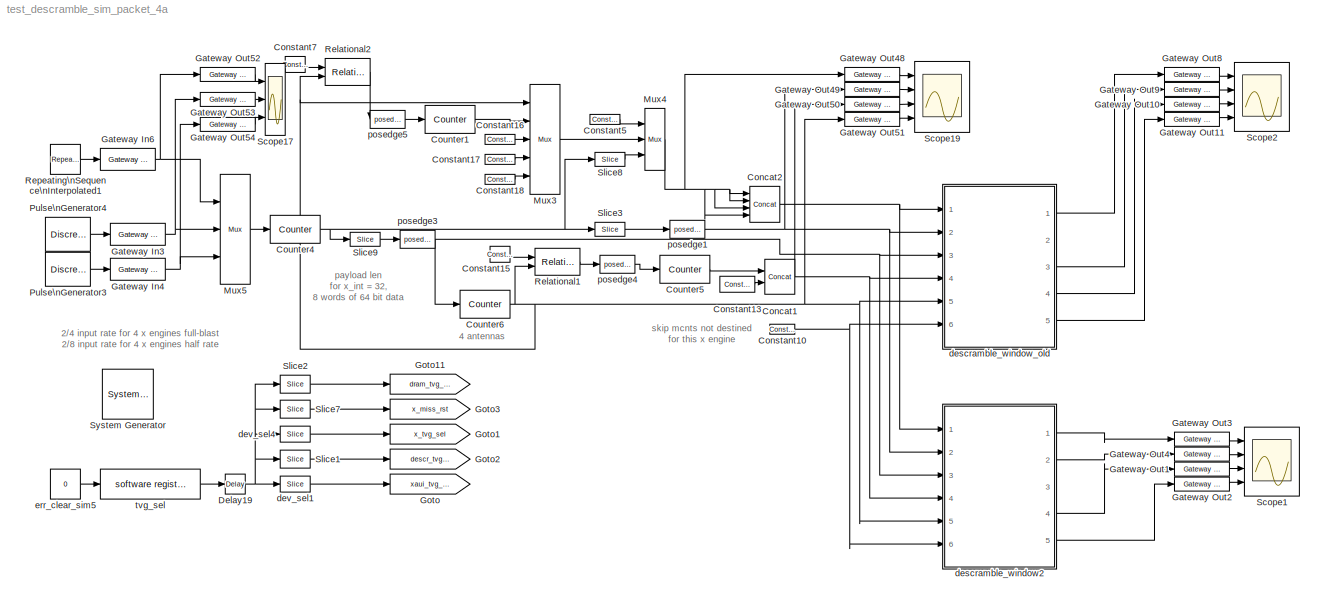
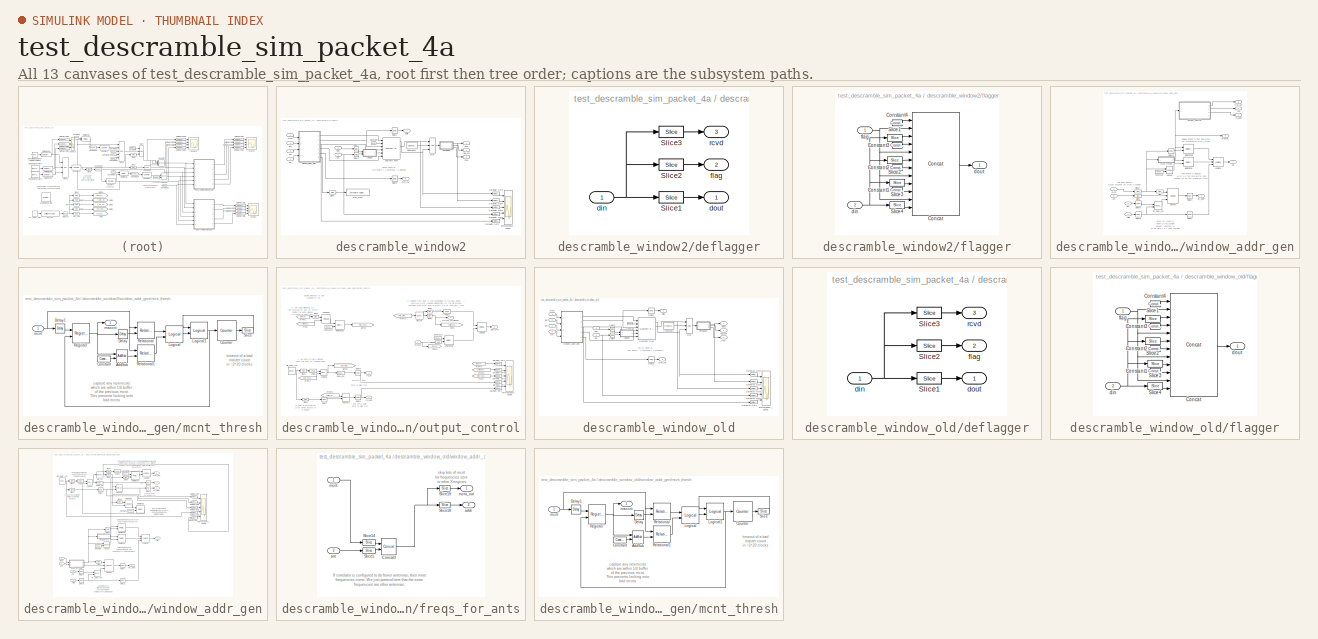
[diagram: thumbnail index - all 13 canvases of the model, root first then tree order]
MODEL test_descramble_sim_packet_4a
KIND model
BLOCK [Reference]  System Generator  REF=xbsIndex_r3/ System Generator
  AttributesFormatString = System\\nGenerator
  Ports = []
  ShowPortLabels = on
  SourceBlock = xbsIndex_r3/ System Generator
  SourceType = Xilinx System Generator
  Tag = genX
  UserData = DataTag0
  UserDataPersistent = on
  core_generation = According to Block Masks
  dbl_ovrd = According to Block Masks
  deprecated_control = off
  directory = ./netlist
  eval_field = 0
  incr_netlist = off
  package = bg575
  part = xc2v1000
  run_coregen = off
  simulink_period = 1
  speed = -4
  synthesis_tool = XST
  sysclk_period = 100
  testbench = off
  trim_vbits = Everywhere in SubSystem
  xilinxfamily = Virtex2
BLOCK [Reference] Concat1  REF=xbsIndex_r3/Concat
  Ports = [2, 1]
  SourceBlock = xbsIndex_r3/Concat
  SourceType = Xilinx Bus Concatenator
  dbl_ovrd = off
  explicit_period = off
  num_inputs = 2
  period = 1
BLOCK [Reference] Concat2  REF=xbsIndex_r3/Concat
  Ports = [4, 1]
  SourceBlock = xbsIndex_r3/Concat
  SourceType = Xilinx Bus Concatenator
  dbl_ovrd = off
  explicit_period = off
  num_inputs = 4
  period = 1
BLOCK [Reference] Constant10  REF=xbsIndex_r3/Constant
  Ports = [0, 1]
  SourceBlock = xbsIndex_r3/Constant
  SourceType = Xilinx Constant Block
  arith_type = Unsigned
  bin_pt = 0
  carry = CIN
  const = 0
  dbl_ovrd = off
  equ = P=C
  explicit_period = on
  inp1 = P
  inp2 = PCIN>>17
  iostate = 0
  n_bits = 1
  opr = +
  opselect = C
  period = 1
BLOCK [Reference] Constant13  REF=xbsIndex_r3/Constant
  Ports = [0, 1]
  SourceBlock = xbsIndex_r3/Constant
  SourceType = Xilinx Constant Block
  arith_type = Unsigned
  bin_pt = 0
  carry = CIN
  const = 0
  dbl_ovrd = off
  equ = P=C
  explicit_period = on
  inp1 = P
  inp2 = PCIN>>17
  iostate = 0
  n_bits = 2
  opr = +
  opselect = C
  period = 1
BLOCK [Reference] Constant15  REF=xbsIndex_r3/Constant
  Ports = [0, 1]
  SourceBlock = xbsIndex_r3/Constant
  SourceType = Xilinx Constant Block
  arith_type = Unsigned
  bin_pt = 0
  carry = CIN
  const = 0
  dbl_ovrd = off
  equ = P=C
  explicit_period = on
  inp1 = P
  inp2 = PCIN>>17
  iostate = 0
  n_bits = 3
  opr = +
  opselect = C
  period = 1
BLOCK [Reference] Constant16  REF=xbsIndex_r3/Constant
  Ports = [0, 1]
  SourceBlock = xbsIndex_r3/Constant
  SourceType = Xilinx Constant Block
  arith_type = Unsigned
  bin_pt = 0
  carry = CIN
  const = 0
  dbl_ovrd = off
  equ = P=C
  explicit_period = on
  inp1 = P
  inp2 = PCIN>>17
  iostate = 0
  n_bits = 16
  opr = +
  opselect = C
  period = 1
BLOCK [Reference] Constant17  REF=xbsIndex_r3/Constant
  Ports = [0, 1]
  SourceBlock = xbsIndex_r3/Constant
  SourceType = Xilinx Constant Block
  arith_type = Unsigned
  bin_pt = 0
  carry = CIN
  const = 0
  dbl_ovrd = off
  equ = P=C
  explicit_period = on
  inp1 = P
  inp2 = PCIN>>17
  iostate = 0
  n_bits = 16
  opr = +
  opselect = C
  period = 1
BLOCK [Reference] Constant18  REF=xbsIndex_r3/Constant
  Ports = [0, 1]
  SourceBlock = xbsIndex_r3/Constant
  SourceType = Xilinx Constant Block
  arith_type = Unsigned
  bin_pt = 0
  carry = CIN
  const = 0
  dbl_ovrd = off
  equ = P=C
  explicit_period = on
  inp1 = P
  inp2 = PCIN>>17
  iostate = 0
  n_bits = 16
  opr = +
  opselect = C
  period = 1
BLOCK [Reference] Constant5  REF=xbsIndex_r3/Constant
  Ports = [0, 1]
  SourceBlock = xbsIndex_r3/Constant
  SourceType = Xilinx Constant Block
  arith_type = Unsigned
  bin_pt = 0
  carry = CIN
  const = 0
  dbl_ovrd = off
  equ = P=C
  explicit_period = on
  inp1 = P
  inp2 = PCIN>>17
  iostate = 0
  n_bits = 1
  opr = +
  opselect = C
  period = 1
BLOCK [Reference] Constant7  REF=xbsIndex_r3/Constant
  Ports = [0, 1]
  SourceBlock = xbsIndex_r3/Constant
  SourceType = Xilinx Constant Block
  arith_type = Unsigned
  bin_pt = 0
  carry = CIN
  const = 0
  dbl_ovrd = off
  equ = P=C
  explicit_period = on
  inp1 = P
  inp2 = PCIN>>17
  iostate = 0
  n_bits = 1
  opr = +
  opselect = C
  period = 1
BLOCK [Reference] Counter1  REF=xbsIndex_r3/Counter
  Ports = [1, 1]
  SourceBlock = xbsIndex_r3/Counter
  SourceType = Xilinx Counter Block
  arith_type = Unsigned
  bin_pt = 0
  cnt_by_val = 1
  cnt_to = Inf
  cnt_type = Free Running
  dbl_ovrd = off
  en = on
  explicit_period = off
  gen_core = off
  load_pin = off
  n_bits = 16
  operation = Up
  period = 1
  rst = off
  show_param = off
  start_count = 0
  use_rpm = on
  xl_area = [0, 0, 0, 0, 0, 0, 0]
  xl_use_area = off
BLOCK [Reference] Counter4  REF=xbsIndex_r3/Counter
  Ports = [1, 1]
  SourceBlock = xbsIndex_r3/Counter
  SourceType = Xilinx Counter Block
  arith_type = Unsigned
  bin_pt = 0
  cnt_by_val = 1
  cnt_to = 32
  cnt_type = Free Running
  dbl_ovrd = off
  en = on
  explicit_period = off
  gen_core = off
  load_pin = off
  n_bits = 32
  operation = Up
  period = 1
  rst = off
  show_param = off
  start_count = 0
  use_rpm = on
  xl_area = [0, 0, 0, 0, 0, 0, 0]
  xl_use_area = off
BLOCK [Reference] Counter5  REF=xbsIndex_r3/Counter
  Ports = [1, 1]
  SourceBlock = xbsIndex_r3/Counter
  SourceType = Xilinx Counter Block
  arith_type = Unsigned
  bin_pt = 0
  cnt_by_val = 1
  cnt_to = Inf
  cnt_type = Free Running
  dbl_ovrd = off
  en = on
  explicit_period = off
  gen_core = off
  load_pin = off
  n_bits = 48-2
  operation = Up
  period = 1
  rst = off
  show_param = off
  start_count = 0
  use_rpm = on
  xl_area = [0, 0, 0, 0, 0, 0, 0]
  xl_use_area = off
BLOCK [Reference] Counter6  REF=xbsIndex_r3/Counter
  Ports = [1, 1]
  SourceBlock = xbsIndex_r3/Counter
  SourceType = Xilinx Counter Block
  arith_type = Unsigned
  bin_pt = 0
  cnt_by_val = 1
  cnt_to = Inf
  cnt_type = Free Running
  dbl_ovrd = off
  en = on
  explicit_period = off
  gen_core = off
  load_pin = off
  n_bits = 2
  operation = Up
  period = 1
  rst = off
  show_param = off
  start_count = 0
  use_rpm = on
  xl_area = [0, 0, 0, 0, 0, 0, 0]
  xl_use_area = off
BLOCK [Reference] Delay19  REF=xbsIndex_r3/Delay
  Ports = [1, 1]
  SourceBlock = xbsIndex_r3/Delay
  SourceType = Xilinx Delay Block
  accept_only_valid = off
  dbl_ovrd = off
  en = off
  explicit_period = off
  init_zero = on
  latency = 2
  period = 1
  reg_retiming = off
  show_param = off
  xl_area = [0, 0, 0, 0, 0, 0, 0]
  xl_use_area = off
BLOCK [Reference] Gateway In3  REF=xbsIndex_r3/Gateway In
  LOCs = {}
  Ports = [1, 1]
  SourceBlock = xbsIndex_r3/Gateway In
  SourceType = Xilinx Gateway In
  arith_type = Boolean
  bin_pt = 6
  dbl_ovrd = off
  locs_specified = off
  n_bits = 8
  needs_fixed_name = off
  overflow = Wrap
  period = 1
  quantization = Truncate
  show_param = off
  timing_constraint = None
  xl_area = [0, 0, 0, 0, 0, 0, 0]
  xl_use_area = off
BLOCK [Reference] Gateway In4  REF=xbsIndex_r3/Gateway In
  LOCs = {}
  Ports = [1, 1]
  SourceBlock = xbsIndex_r3/Gateway In
  SourceType = Xilinx Gateway In
  arith_type = Boolean
  bin_pt = 6
  dbl_ovrd = off
  locs_specified = off
  n_bits = 8
  needs_fixed_name = off
  overflow = Wrap
  period = 1
  quantization = Truncate
  show_param = off
  timing_constraint = None
  xl_area = [0, 0, 0, 0, 0, 0, 0]
  xl_use_area = off
BLOCK [Reference] Gateway In6  REF=xbsIndex_r3/Gateway In
  LOCs = {}
  Ports = [1, 1]
  SourceBlock = xbsIndex_r3/Gateway In
  SourceType = Xilinx Gateway In
  arith_type = Unsigned
  bin_pt = 0
  dbl_ovrd = off
  locs_specified = off
  n_bits = 1
  needs_fixed_name = off
  overflow = Wrap
  period = 1
  quantization = Truncate
  show_param = off
  timing_constraint = None
  xl_area = [0, 0, 0, 0, 0, 0, 0]
  xl_use_area = off
BLOCK [Reference] Gateway Out1  REF=xbsIndex_r3/Gateway Out
  LOCs = {}
  Ports = [1, 1]
  SourceBlock = xbsIndex_r3/Gateway Out
  SourceType = Xilinx Gateway Out
  arith_type = Boolean
  bin_pt = 6
  hdl_port = on
  locs_specified = off
  nbits = 8
  needs_fixed_name = off
  output_type = Double
  overflow = Wrap
  quantization = Truncate
  show_param = off
  timing_constraint = None
  xl_area = [0, 0, 0, 0, 0, 0, 0]
  xl_use_area = off
BLOCK [Reference] Gateway Out10  REF=xbsIndex_r3/Gateway Out
  LOCs = {}
  Ports = [1, 1]
  SourceBlock = xbsIndex_r3/Gateway Out
  SourceType = Xilinx Gateway Out
  arith_type = Boolean
  bin_pt = 6
  hdl_port = on
  locs_specified = off
  nbits = 8
  needs_fixed_name = off
  output_type = Double
  overflow = Wrap
  quantization = Truncate
  show_param = off
  timing_constraint = None
  xl_area = [0, 0, 0, 0, 0, 0, 0]
  xl_use_area = off
BLOCK [Reference] Gateway Out11  REF=xbsIndex_r3/Gateway Out
  LOCs = {}
  Ports = [1, 1]
  SourceBlock = xbsIndex_r3/Gateway Out
  SourceType = Xilinx Gateway Out
  arith_type = Boolean
  bin_pt = 6
  hdl_port = on
  locs_specified = off
  nbits = 8
  needs_fixed_name = off
  output_type = Double
  overflow = Wrap
  quantization = Truncate
  show_param = off
  timing_constraint = None
  xl_area = [0, 0, 0, 0, 0, 0, 0]
  xl_use_area = off
BLOCK [Reference] Gateway Out2  REF=xbsIndex_r3/Gateway Out
  LOCs = {}
  Ports = [1, 1]
  SourceBlock = xbsIndex_r3/Gateway Out
  SourceType = Xilinx Gateway Out
  arith_type = Boolean
  bin_pt = 6
  hdl_port = on
  locs_specified = off
  nbits = 8
  needs_fixed_name = off
  output_type = Double
  overflow = Wrap
  quantization = Truncate
  show_param = off
  timing_constraint = None
  xl_area = [0, 0, 0, 0, 0, 0, 0]
  xl_use_area = off
BLOCK [Reference] Gateway Out3  REF=xbsIndex_r3/Gateway Out
  LOCs = {}
  Ports = [1, 1]
  SourceBlock = xbsIndex_r3/Gateway Out
  SourceType = Xilinx Gateway Out
  arith_type = Boolean
  bin_pt = 6
  hdl_port = on
  locs_specified = off
  nbits = 8
  needs_fixed_name = off
  output_type = Double
  overflow = Wrap
  quantization = Truncate
  show_param = off
  timing_constraint = None
  xl_area = [0, 0, 0, 0, 0, 0, 0]
  xl_use_area = off
BLOCK [Reference] Gateway Out4  REF=xbsIndex_r3/Gateway Out
  LOCs = {}
  Ports = [1, 1]
  SourceBlock = xbsIndex_r3/Gateway Out
  SourceType = Xilinx Gateway Out
  arith_type = Boolean
  bin_pt = 6
  hdl_port = on
  locs_specified = off
  nbits = 8
  needs_fixed_name = off
  output_type = Double
  overflow = Wrap
  quantization = Truncate
  show_param = off
  timing_constraint = None
  xl_area = [0, 0, 0, 0, 0, 0, 0]
  xl_use_area = off
BLOCK [Reference] Gateway Out48  REF=xbsIndex_r3/Gateway Out
  LOCs = {}
  Ports = [1, 1]
  SourceBlock = xbsIndex_r3/Gateway Out
  SourceType = Xilinx Gateway Out
  arith_type = Boolean
  bin_pt = 6
  hdl_port = on
  locs_specified = off
  nbits = 8
  needs_fixed_name = off
  output_type = Double
  overflow = Wrap
  quantization = Truncate
  show_param = off
  timing_constraint = None
  xl_area = [0, 0, 0, 0, 0, 0, 0]
  xl_use_area = off
BLOCK [Reference] Gateway Out49  REF=xbsIndex_r3/Gateway Out
  LOCs = {}
  Ports = [1, 1]
  SourceBlock = xbsIndex_r3/Gateway Out
  SourceType = Xilinx Gateway Out
  arith_type = Boolean
  bin_pt = 6
  hdl_port = on
  locs_specified = off
  nbits = 8
  needs_fixed_name = off
  output_type = Double
  overflow = Wrap
  quantization = Truncate
  show_param = off
  timing_constraint = None
  xl_area = [0, 0, 0, 0, 0, 0, 0]
  xl_use_area = off
BLOCK [Reference] Gateway Out50  REF=xbsIndex_r3/Gateway Out
  LOCs = {}
  Ports = [1, 1]
  SourceBlock = xbsIndex_r3/Gateway Out
  SourceType = Xilinx Gateway Out
  arith_type = Boolean
  bin_pt = 6
  hdl_port = on
  locs_specified = off
  nbits = 8
  needs_fixed_name = off
  output_type = Double
  overflow = Wrap
  quantization = Truncate
  show_param = off
  timing_constraint = None
  xl_area = [0, 0, 0, 0, 0, 0, 0]
  xl_use_area = off
BLOCK [Reference] Gateway Out51  REF=xbsIndex_r3/Gateway Out
  LOCs = {}
  Ports = [1, 1]
  SourceBlock = xbsIndex_r3/Gateway Out
  SourceType = Xilinx Gateway Out
  arith_type = Boolean
  bin_pt = 6
  hdl_port = on
  locs_specified = off
  nbits = 8
  needs_fixed_name = off
  output_type = Double
  overflow = Wrap
  quantization = Truncate
  show_param = off
  timing_constraint = None
  xl_area = [0, 0, 0, 0, 0, 0, 0]
  xl_use_area = off
BLOCK [Reference] Gateway Out52  REF=xbsIndex_r3/Gateway Out
  LOCs = {}
  Ports = [1, 1]
  SourceBlock = xbsIndex_r3/Gateway Out
  SourceType = Xilinx Gateway Out
  arith_type = Boolean
  bin_pt = 6
  hdl_port = on
  locs_specified = off
  nbits = 8
  needs_fixed_name = off
  output_type = Double
  overflow = Wrap
  quantization = Truncate
  show_param = off
  timing_constraint = None
  xl_area = [0, 0, 0, 0, 0, 0, 0]
  xl_use_area = off
BLOCK [Reference] Gateway Out53  REF=xbsIndex_r3/Gateway Out
  LOCs = {}
  Ports = [1, 1]
  SourceBlock = xbsIndex_r3/Gateway Out
  SourceType = Xilinx Gateway Out
  arith_type = Boolean
  bin_pt = 6
  hdl_port = on
  locs_specified = off
  nbits = 8
  needs_fixed_name = off
  output_type = Double
  overflow = Wrap
  quantization = Truncate
  show_param = off
  timing_constraint = None
  xl_area = [0, 0, 0, 0, 0, 0, 0]
  xl_use_area = off
BLOCK [Reference] Gateway Out54  REF=xbsIndex_r3/Gateway Out
  LOCs = {}
  Ports = [1, 1]
  SourceBlock = xbsIndex_r3/Gateway Out
  SourceType = Xilinx Gateway Out
  arith_type = Boolean
  bin_pt = 6
  hdl_port = on
  locs_specified = off
  nbits = 8
  needs_fixed_name = off
  output_type = Double
  overflow = Wrap
  quantization = Truncate
  show_param = off
  timing_constraint = None
  xl_area = [0, 0, 0, 0, 0, 0, 0]
  xl_use_area = off
BLOCK [Reference] Gateway Out8  REF=xbsIndex_r3/Gateway Out
  LOCs = {}
  Ports = [1, 1]
  SourceBlock = xbsIndex_r3/Gateway Out
  SourceType = Xilinx Gateway Out
  arith_type = Boolean
  bin_pt = 6
  hdl_port = on
  locs_specified = off
  nbits = 8
  needs_fixed_name = off
  output_type = Double
  overflow = Wrap
  quantization = Truncate
  show_param = off
  timing_constraint = None
  xl_area = [0, 0, 0, 0, 0, 0, 0]
  xl_use_area = off
BLOCK [Reference] Gateway Out9  REF=xbsIndex_r3/Gateway Out
  LOCs = {}
  Ports = [1, 1]
  SourceBlock = xbsIndex_r3/Gateway Out
  SourceType = Xilinx Gateway Out
  arith_type = Boolean
  bin_pt = 6
  hdl_port = on
  locs_specified = off
  nbits = 8
  needs_fixed_name = off
  output_type = Double
  overflow = Wrap
  quantization = Truncate
  show_param = off
  timing_constraint = None
  xl_area = [0, 0, 0, 0, 0, 0, 0]
  xl_use_area = off
BLOCK [Goto] Goto
  GotoTag = xaui_tvg_sel
  TagVisibility = local
BLOCK [Goto] Goto1
  GotoTag = x_tvg_sel
  TagVisibility = local
BLOCK [Goto] Goto11
  GotoTag = dram_tvg_sel
  TagVisibility = local
BLOCK [Goto] Goto2
  GotoTag = descr_tvg_sel
  TagVisibility = local
BLOCK [Goto] Goto3
  GotoTag = x_miss_rst
  TagVisibility = local
BLOCK [Reference] Mux3  REF=xbsIndex_r3/Mux
  Ports = [5, 1]
  SourceBlock = xbsIndex_r3/Mux
  SourceType = Xilinx Multiplexer Block
  arith_type = Signed  (2's comp)
  bin_pt = 2
  dbl_ovrd = off
  en = off
  explicit_period = off
  gen_core = off
  inputs = 4
  latency = 0
  mux_type = off
  n_bits = 8
  overflow = Wrap
  period = 1
  precision = Full
  quantization = Truncate
  show_param = off
  use_rpm = off
  xl_area = [0, 0, 0, 0, 0, 0, 0]
  xl_use_area = off
BLOCK [Reference] Mux4  REF=xbsIndex_r3/Mux
  Ports = [3, 1]
  SourceBlock = xbsIndex_r3/Mux
  SourceType = Xilinx Multiplexer Block
  arith_type = Signed  (2's comp)
  bin_pt = 2
  dbl_ovrd = off
  en = off
  explicit_period = off
  gen_core = off
  inputs = 2
  latency = 0
  mux_type = off
  n_bits = 8
  overflow = Wrap
  period = 1
  precision = Full
  quantization = Truncate
  show_param = off
  use_rpm = off
  xl_area = [0, 0, 0, 0, 0, 0, 0]
  xl_use_area = off
BLOCK [Reference] Mux5  REF=xbsIndex_r3/Mux
  Ports = [3, 1]
  SourceBlock = xbsIndex_r3/Mux
  SourceType = Xilinx Multiplexer Block
  arith_type = Signed  (2's comp)
  bin_pt = 2
  dbl_ovrd = off
  en = off
  explicit_period = off
  gen_core = off
  inputs = 2
  latency = 0
  mux_type = off
  n_bits = 8
  overflow = Wrap
  period = 1
  precision = Full
  quantization = Truncate
  show_param = off
  use_rpm = off
  xl_area = [0, 0, 0, 0, 0, 0, 0]
  xl_use_area = off
BLOCK [DiscretePulseGenerator] Pulse\nGenerator3
  Period = 4
  Ports = [0, 1]
  PulseWidth = 2
BLOCK [DiscretePulseGenerator] Pulse\nGenerator4
  Ports = [0, 1]
  PulseWidth = 2
BLOCK [Reference] Relational1  REF=xbsIndex_r3/Relational
  Ports = [2, 1]
  SourceBlock = xbsIndex_r3/Relational
  SourceType = Xilinx Relational Block
  dbl_ovrd = off
  en = off
  explicit_period = off
  latency = 1
  mode = a=b
  period = 1
  show_param = off
  xl_area = [0, 0, 0, 0, 0, 0, 0]
  xl_use_area = off
BLOCK [Reference] Relational2  REF=xbsIndex_r3/Relational
  Ports = [2, 1]
  SourceBlock = xbsIndex_r3/Relational
  SourceType = Xilinx Relational Block
  dbl_ovrd = off
  en = off
  explicit_period = off
  latency = 1
  mode = a=b
  period = 1
  show_param = off
  xl_area = [0, 0, 0, 0, 0, 0, 0]
  xl_use_area = off
BLOCK [Reference] Repeating\nSequence\nInterpolated1  REF=simulink/Sources/Repeating\nSequence\nInterpolated
  LockScale = off
  LookUpMeth = Use Input Above
  OutDataType = float('double')
  OutScaling = 2^-10
  OutValues = [0 1].'
  OutputDataTypeScalingMode = Specify via dialog
  Ports = [0, 1]
  ShowPortLabels = on
  SourceBlock = simulink/Sources/Repeating\nSequence\nInterpolated
  SourceType = Repeating Sequence Interpolated
  TimeValues = [100000 300000].'
  tsamp = 1
BLOCK [Scope] Scope1
  DataFormat = StructureWithTime
  LimitDataPoints = off
  NumInputPorts = 4
  Ports = [4]
  SaveName = ScopeData1
  YMax = 32.5~1.05~1.05~1
  YMin = 0~0.95~0.95~0
  ZoomMode = xonly
BLOCK [Scope] Scope17
  DataFormat = StructureWithTime
  LimitDataPoints = off
  NumInputPorts = 3
  Ports = [3]
  SaveName = ScopeData9
  YMax = 1~1~1
  YMin = -1~0~0
  ZoomMode = xonly
BLOCK [Scope] Scope19
  DataFormat = StructureWithTime
  LimitDataPoints = off
  NumInputPorts = 4
  Ports = [4]
  SaveName = ScopeData14
  YMax = 1~1~40~3
  YMin = 0~0~28~0
  ZoomMode = xonly
BLOCK [Scope] Scope2
  DataFormat = StructureWithTime
  LimitDataPoints = off
  NumInputPorts = 4
  Ports = [4]
  YMax = 32.5~1~1~1
  YMin = 0~1~1~0
  ZoomMode = xonly
BLOCK [Reference] Slice1  REF=xbsIndex_r3/Slice
  Ports = [1, 1]
  SourceBlock = xbsIndex_r3/Slice
  SourceType = Xilinx Slice Block
  base0 = LSB of Input
  base1 = MSB of Input
  bit0 = 1
  bit1 = 0
  boolean_output = on
  dbl_ovrd = off
  explicit_period = off
  mode = Lower Bit Location + Width
  nbits = 2
  period = 1
BLOCK [Reference] Slice2  REF=xbsIndex_r3/Slice
  Ports = [1, 1]
  SourceBlock = xbsIndex_r3/Slice
  SourceType = Xilinx Slice Block
  base0 = LSB of Input
  base1 = MSB of Input
  bit0 = 9
  bit1 = 0
  boolean_output = off
  dbl_ovrd = off
  explicit_period = off
  mode = Lower Bit Location + Width
  nbits = 5
  period = 1
BLOCK [Reference] Slice3  REF=xbsIndex_r3/Slice
  Ports = [1, 1]
  SourceBlock = xbsIndex_r3/Slice
  SourceType = Xilinx Slice Block
  base0 = LSB of Input
  base1 = MSB of Input
  bit0 = 0
  bit1 = 0
  boolean_output = on
  dbl_ovrd = off
  explicit_period = off
  mode = Lower Bit Location + Width
  nbits = 1
  period = 1
BLOCK [Reference] Slice7  REF=xbsIndex_r3/Slice
  Ports = [1, 1]
  SourceBlock = xbsIndex_r3/Slice
  SourceType = Xilinx Slice Block
  base0 = LSB of Input
  base1 = MSB of Input
  bit0 = 8
  bit1 = 0
  boolean_output = on
  dbl_ovrd = off
  explicit_period = off
  mode = Lower Bit Location + Width
  nbits = 1
  period = 1
BLOCK [Reference] Slice8  REF=xbsIndex_r3/Slice
  Ports = [1, 1]
  SourceBlock = xbsIndex_r3/Slice
  SourceType = Xilinx Slice Block
  base0 = LSB of Input
  base1 = MSB of Input
  bit0 = 1
  bit1 = 0
  boolean_output = on
  dbl_ovrd = off
  explicit_period = off
  mode = Lower Bit Location + Width
  nbits = 16
  period = 1
BLOCK [Reference] Slice9  REF=xbsIndex_r3/Slice
  Ports = [1, 1]
  SourceBlock = xbsIndex_r3/Slice
  SourceType = Xilinx Slice Block
  base0 = LSB of Input
  base1 = MSB of Input
  bit0 = 4
  bit1 = 0
  boolean_output = on
  dbl_ovrd = off
  explicit_period = off
  mode = Lower Bit Location + Width
  nbits = 1
  period = 1
BLOCK [SubSystem] descramble_window2
  AttributesFormatString = Sync period: 2^12
  MaskCallbackString = ||||
  MaskEnableString = on,on,on,on,on
  MaskIconFrame = on
  MaskIconOpaque = on
  MaskIconRotate = none
  MaskIconUnits = autoscale
  MaskInitialization = sync_bits=chan_bits+x_int_bits+ant_bits-xeng_bits\n\nfmtstr = sprintf('Sync period: 2^%d', sync_bits);\nset_param(gcb, 'AttributesFormatString', fmtstr);\n
  MaskPromptString = Maximum Number of Antennas (2^?):|Number of Xengines in the system (2^?)|Number of frequency channels in the system (2^?)|X Engine Integration Length (2^?):|Number of Windows to Buffer (2^?):
  MaskStyleString = edit,edit,edit,edit,edit
  MaskTabNameString = ,,,,
  MaskToolTipString = on,on,on,on,on
  MaskTunableValueString = on,on,on,on,on
  MaskValueString = 2|2|7|5|3
  MaskVarAliasString = ,,,,
  MaskVariables = ant_bits=@1;xeng_bits=@2;chan_bits=@3;x_int_bits=@4;window_bits=@5;
  MaskVisibilityString = on,on,on,on,on
  MinAlgLoopOccurrences = off
  Ports = [6, 5]
  RTWSystemCode = Auto
  TreatAsAtomicUnit = off
BLOCK [Reference] descramble_window2/Constant  REF=xbsIndex_r3/Constant
  Ports = [0, 1]
  SourceBlock = xbsIndex_r3/Constant
  SourceType = Xilinx Constant Block
  arith_type = Unsigned
  bin_pt = 0
  carry = CIN
  const = 0
  dbl_ovrd = off
  equ = P=C
  explicit_period = on
  inp1 = P
  inp2 = PCIN>>17
  iostate = 0
  n_bits = 18
  opr = +
  opselect = C
  period = 1
BLOCK [Reference] descramble_window2/Constant1  REF=xbsIndex_r3/Constant
  Ports = [0, 1]
  SourceBlock = xbsIndex_r3/Constant
  SourceType = Xilinx Constant Block
  arith_type = Unsigned
  bin_pt = 0
  carry = CIN
  const = 0
  dbl_ovrd = off
  equ = P=C
  explicit_period = off
  inp1 = P
  inp2 = PCIN>>17
  iostate = 0
  n_bits = 1
  opr = +
  opselect = C
  period = 1
BLOCK [Reference] descramble_window2/Delay1  REF=xbsIndex_r3/Delay
  Ports = [1, 1]
  SourceBlock = xbsIndex_r3/Delay
  SourceType = Xilinx Delay Block
  accept_only_valid = off
  dbl_ovrd = off
  en = off
  explicit_period = off
  init_zero = on
  latency = 2
  period = 1
  reg_retiming = off
  show_param = off
  xl_area = [0, 0, 0, 0, 0, 0, 0]
  xl_use_area = off
BLOCK [Reference] descramble_window2/Delay2  REF=xbsIndex_r3/Delay
  Ports = [1, 1]
  SourceBlock = xbsIndex_r3/Delay
  SourceType = Xilinx Delay Block
  accept_only_valid = off
  dbl_ovrd = off
  en = off
  explicit_period = off
  init_zero = on
  latency = 4
  period = 1
  reg_retiming = off
  show_param = off
  xl_area = [0, 0, 0, 0, 0, 0, 0]
  xl_use_area = off
BLOCK [Reference] descramble_window2/Delay3  REF=xbsIndex_r3/Delay
  Ports = [1, 1]
  SourceBlock = xbsIndex_r3/Delay
  SourceType = Xilinx Delay Block
  accept_only_valid = off
  dbl_ovrd = off
  en = off
  explicit_period = off
  init_zero = on
  latency = 2
  period = 1
  reg_retiming = off
  show_param = off
  xl_area = [0, 0, 0, 0, 0, 0, 0]
  xl_use_area = off
BLOCK [Reference] descramble_window2/Delay4  REF=xbsIndex_r3/Delay
  Ports = [1, 1]
  SourceBlock = xbsIndex_r3/Delay
  SourceType = Xilinx Delay Block
  accept_only_valid = off
  dbl_ovrd = off
  en = off
  explicit_period = off
  init_zero = on
  latency = 4
  period = 1
  reg_retiming = off
  show_param = off
  xl_area = [0, 0, 0, 0, 0, 0, 0]
  xl_use_area = off
BLOCK [Reference] descramble_window2/Dual Port RAM  REF=xbsIndex_r3/Dual Port RAM
  Ports = [6, 4]
  SourceBlock = xbsIndex_r3/Dual Port RAM
  SourceType = Xilinx Dual Port Random Access Memory
  dbl_ovrd = off
  depth = 2^x_int_bits * 2^ant_bits * 2^window_bits
  distributed_mem = off
  explicit_period = on
  gen_core = off
  initVector = 1
  init_a = 0
  init_b = 0
  init_zero = on
  latency = 2
  mem_collision = on
  period = 1
  rst_a = off
  rst_b = off
  show_param = off
  use_rpm = off
  write_mode_A = Read Before Write
  write_mode_B = Read Before Write
  xl_area = [0, 0, 0, 0, 0, 0, 0]
  xl_use_area = off
BLOCK [Reference] descramble_window2/Gateway Out1  REF=xbsIndex_r3/Gateway Out
  LOCs = {}
  Ports = [1, 1]
  SourceBlock = xbsIndex_r3/Gateway Out
  SourceType = Xilinx Gateway Out
  arith_type = Boolean
  bin_pt = 6
  hdl_port = off
  locs_specified = off
  nbits = 8
  needs_fixed_name = off
  output_type = Double
  overflow = Wrap
  quantization = Truncate
  show_param = off
  timing_constraint = None
  xl_area = [0, 0, 0, 0, 0, 0, 0]
  xl_use_area = off
BLOCK [Reference] descramble_window2/Gateway Out2  REF=xbsIndex_r3/Gateway Out
  LOCs = {}
  Ports = [1, 1]
  SourceBlock = xbsIndex_r3/Gateway Out
  SourceType = Xilinx Gateway Out
  arith_type = Boolean
  bin_pt = 6
  hdl_port = off
  locs_specified = off
  nbits = 8
  needs_fixed_name = off
  output_type = Double
  overflow = Wrap
  quantization = Truncate
  show_param = off
  timing_constraint = None
  xl_area = [0, 0, 0, 0, 0, 0, 0]
  xl_use_area = off
BLOCK [Reference] descramble_window2/Gateway Out3  REF=xbsIndex_r3/Gateway Out
  LOCs = {}
  Ports = [1, 1]
  SourceBlock = xbsIndex_r3/Gateway Out
  SourceType = Xilinx Gateway Out
  arith_type = Boolean
  bin_pt = 6
  hdl_port = off
  locs_specified = off
  nbits = 8
  needs_fixed_name = off
  output_type = Double
  overflow = Wrap
  quantization = Truncate
  show_param = off
  timing_constraint = None
  xl_area = [0, 0, 0, 0, 0, 0, 0]
  xl_use_area = off
BLOCK [Reference] descramble_window2/Gateway Out4  REF=xbsIndex_r3/Gateway Out
  LOCs = {}
  Ports = [1, 1]
  SourceBlock = xbsIndex_r3/Gateway Out
  SourceType = Xilinx Gateway Out
  arith_type = Boolean
  bin_pt = 6
  hdl_port = off
  locs_specified = off
  nbits = 8
  needs_fixed_name = off
  output_type = Double
  overflow = Wrap
  quantization = Truncate
  show_param = off
  timing_constraint = None
  xl_area = [0, 0, 0, 0, 0, 0, 0]
  xl_use_area = off
BLOCK [Reference] descramble_window2/Gateway Out5  REF=xbsIndex_r3/Gateway Out
  LOCs = {}
  Ports = [1, 1]
  SourceBlock = xbsIndex_r3/Gateway Out
  SourceType = Xilinx Gateway Out
  arith_type = Boolean
  bin_pt = 6
  hdl_port = off
  locs_specified = off
  nbits = 8
  needs_fixed_name = off
  output_type = Double
  overflow = Wrap
  quantization = Truncate
  show_param = off
  timing_constraint = None
  xl_area = [0, 0, 0, 0, 0, 0, 0]
  xl_use_area = off
BLOCK [Reference] descramble_window2/Mux  REF=xbsIndex_r3/Mux
  Ports = [3, 1]
  SourceBlock = xbsIndex_r3/Mux
  SourceType = Xilinx Multiplexer Block
  arith_type = Signed  (2's comp)
  bin_pt = 2
  dbl_ovrd = off
  en = off
  explicit_period = off
  gen_core = off
  inputs = 2
  latency = 0
  mux_type = off
  n_bits = 8
  overflow = Wrap
  period = 1
  precision = Full
  quantization = Truncate
  show_param = off
  use_rpm = off
  xl_area = [0, 0, 0, 0, 0, 0, 0]
  xl_use_area = off
BLOCK [Reference] descramble_window2/Slice3  REF=xbsIndex_r3/Slice
  Ports = [1, 1]
  SourceBlock = xbsIndex_r3/Slice
  SourceType = Xilinx Slice Block
  base0 = LSB of Input
  base1 = MSB of Input
  bit0 = 0
  bit1 = 0
  boolean_output = off
  dbl_ovrd = off
  explicit_period = off
  mode = Lower Bit Location + Width
  nbits = 32
  period = 1
BLOCK [Inport] descramble_window2/ant
  IconDisplay = Port number
  LatchInput = off
  Port = 5
BLOCK [SubSystem] descramble_window2/deflagger
  MinAlgLoopOccurrences = off
  Ports = [1, 3]
  RTWSystemCode = Auto
  TreatAsAtomicUnit = off
BLOCK [Reference] descramble_window2/deflagger/Slice1  REF=xbsIndex_r3/Slice
  Ports = [1, 1]
  SourceBlock = xbsIndex_r3/Slice
  SourceType = Xilinx Slice Block
  base0 = LSB of Input
  base1 = MSB of Input
  bit0 = 0
  bit1 = 0
  boolean_output = off
  dbl_ovrd = off
  explicit_period = off
  mode = Lower Bit Location + Width
  nbits = 16
  period = 1
BLOCK [Reference] descramble_window2/deflagger/Slice2  REF=xbsIndex_r3/Slice
  Ports = [1, 1]
  SourceBlock = xbsIndex_r3/Slice
  SourceType = Xilinx Slice Block
  base0 = LSB of Input
  base1 = MSB of Input
  bit0 = 0
  bit1 = -1
  boolean_output = on
  dbl_ovrd = off
  explicit_period = off
  mode = Upper Bit Location + Width
  nbits = 1
  period = 1
BLOCK [Reference] descramble_window2/deflagger/Slice3  REF=xbsIndex_r3/Slice
  Ports = [1, 1]
  SourceBlock = xbsIndex_r3/Slice
  SourceType = Xilinx Slice Block
  base0 = LSB of Input
  base1 = MSB of Input
  bit0 = 0
  bit1 = 0
  boolean_output = on
  dbl_ovrd = off
  explicit_period = off
  mode = Upper Bit Location + Width
  nbits = 1
  period = 1
BLOCK [Inport] descramble_window2/deflagger/din
  IconDisplay = Port number
  LatchInput = off
  Port = 1
BLOCK [Outport] descramble_window2/deflagger/dout
  BusOutputAsStruct = off
  IconDisplay = Port number
BLOCK [Outport] descramble_window2/deflagger/flag
  BusOutputAsStruct = off
  IconDisplay = Port number
  Port = 2
BLOCK [Outport] descramble_window2/deflagger/rcvd
  BusOutputAsStruct = off
  IconDisplay = Port number
  Port = 3
BLOCK [Inport] descramble_window2/din
  IconDisplay = Port number
  LatchInput = off
  Port = 1
BLOCK [Outport] descramble_window2/dout
  BusOutputAsStruct = off
  IconDisplay = Port number
BLOCK [Inport] descramble_window2/eof
  IconDisplay = Port number
  LatchInput = off
  Port = 3
BLOCK [Inport] descramble_window2/flag
  IconDisplay = Port number
  LatchInput = off
  Port = 6
BLOCK [Outport] descramble_window2/flag_out
  BusOutputAsStruct = off
  IconDisplay = Port number
  Port = 3
BLOCK [SubSystem] descramble_window2/flagger
  MinAlgLoopOccurrences = off
  Ports = [2, 1]
  RTWSystemCode = Auto
  TreatAsAtomicUnit = off
BLOCK [Reference] descramble_window2/flagger/Concat  REF=xbsIndex_r3/Concat
  Ports = [12, 1]
  SourceBlock = xbsIndex_r3/Concat
  SourceType = Xilinx Bus Concatenator
  dbl_ovrd = off
  explicit_period = off
  num_inputs = 12
  period = 1
BLOCK [Reference] descramble_window2/flagger/Constant1  REF=xbsIndex_r3/Constant
  Ports = [0, 1]
  SourceBlock = xbsIndex_r3/Constant
  SourceType = Xilinx Constant Block
  arith_type = Unsigned
  bin_pt = 0
  carry = CIN
  const = 1
  dbl_ovrd = off
  equ = P=C
  explicit_period = on
  inp1 = P
  inp2 = PCIN>>17
  iostate = 0
  n_bits = 1
  opr = +
  opselect = C
  period = 1
BLOCK [Reference] descramble_window2/flagger/Constant2  REF=xbsIndex_r3/Constant
  Ports = [0, 1]
  SourceBlock = xbsIndex_r3/Constant
  SourceType = Xilinx Constant Block
  arith_type = Unsigned
  bin_pt = 0
  carry = CIN
  const = 1
  dbl_ovrd = off
  equ = P=C
  explicit_period = on
  inp1 = P
  inp2 = PCIN>>17
  iostate = 0
  n_bits = 1
  opr = +
  opselect = C
  period = 1
BLOCK [Reference] descramble_window2/flagger/Constant3  REF=xbsIndex_r3/Constant
  Ports = [0, 1]
  SourceBlock = xbsIndex_r3/Constant
  SourceType = Xilinx Constant Block
  arith_type = Unsigned
  bin_pt = 0
  carry = CIN
  const = 1
  dbl_ovrd = off
  equ = P=C
  explicit_period = on
  inp1 = P
  inp2 = PCIN>>17
  iostate = 0
  n_bits = 1
  opr = +
  opselect = C
  period = 1
BLOCK [Reference] descramble_window2/flagger/Constant4  REF=xbsIndex_r3/Constant
  Ports = [0, 1]
  SourceBlock = xbsIndex_r3/Constant
  SourceType = Xilinx Constant Block
  arith_type = Unsigned
  bin_pt = 0
  carry = CIN
  const = 1
  dbl_ovrd = off
  equ = P=C
  explicit_period = on
  inp1 = P
  inp2 = PCIN>>17
  iostate = 0
  n_bits = 1
  opr = +
  opselect = C
  period = 1
BLOCK [Reference] descramble_window2/flagger/Slice1  REF=xbsIndex_r3/Slice
  Ports = [1, 1]
  SourceBlock = xbsIndex_r3/Slice
  SourceType = Xilinx Slice Block
  base0 = LSB of Input
  base1 = MSB of Input
  bit0 = 0
  bit1 = 0
  boolean_output = off
  dbl_ovrd = off
  explicit_period = off
  mode = Lower Bit Location + Width
  nbits = 16
  period = 1
BLOCK [Reference] descramble_window2/flagger/Slice2  REF=xbsIndex_r3/Slice
  Ports = [1, 1]
  SourceBlock = xbsIndex_r3/Slice
  SourceType = Xilinx Slice Block
  base0 = LSB of Input
  base1 = MSB of Input
  bit0 = 16
  bit1 = 0
  boolean_output = off
  dbl_ovrd = off
  explicit_period = off
  mode = Lower Bit Location + Width
  nbits = 16
  period = 1
BLOCK [Reference] descramble_window2/flagger/Slice3  REF=xbsIndex_r3/Slice
  Ports = [1, 1]
  SourceBlock = xbsIndex_r3/Slice
  SourceType = Xilinx Slice Block
  base0 = LSB of Input
  base1 = MSB of Input
  bit0 = 32
  bit1 = 0
  boolean_output = off
  dbl_ovrd = off
  explicit_period = off
  mode = Lower Bit Location + Width
  nbits = 16
  period = 1
BLOCK [Reference] descramble_window2/flagger/Slice4  REF=xbsIndex_r3/Slice
  Ports = [1, 1]
  SourceBlock = xbsIndex_r3/Slice
  SourceType = Xilinx Slice Block
  base0 = LSB of Input
  base1 = MSB of Input
  bit0 = 48
  bit1 = 0
  boolean_output = off
  dbl_ovrd = off
  explicit_period = off
  mode = Lower Bit Location + Width
  nbits = 16
  period = 1
BLOCK [Inport] descramble_window2/flagger/din
  IconDisplay = Port number
  LatchInput = off
  Port = 2
BLOCK [Outport] descramble_window2/flagger/dout
  BusOutputAsStruct = off
  IconDisplay = Port number
BLOCK [Inport] descramble_window2/flagger/flag
  IconDisplay = Port number
  LatchInput = off
  Port = 1
BLOCK [Scope] descramble_window2/internal_descr_Scope
  DataFormat = StructureWithTime
  LimitDataPoints = off
  NumInputPorts = 5
  Ports = [5]
  SaveName = ScopeData11
  TimeRange = 1
  YMax = 1~1~1.05~5~5
  YMin = -1~-1~0.95~-5~-5
  ZoomMode = xonly
BLOCK [Reference] descramble_window2/max_mcnt  REF=xps_library/software register  (lib defined in mdl_00b5cec29cd0, mdl_02ab6ecaa3d1, +5 more)
  Ports = [1, 1]
  ShowPortLabels = on
  SourceBlock = xps_library/software register
  Tag = xps:sw_reg
  arith_type = Unsigned
  bin_pt = 0
  bitwidth = 32
  gw_name = test_descramble_sim_packet_16a_descramble_window2_max_mcnt_user_data_in
  io_dir = To Processor
  sample_period = 1
BLOCK [Inport] descramble_window2/mcnt
  IconDisplay = Port number
  LatchInput = off
  Port = 4
BLOCK [Outport] descramble_window2/rcvd
  BusOutputAsStruct = off
  IconDisplay = Port number
  Port = 4
BLOCK [Outport] descramble_window2/sync_out
  BusOutputAsStruct = off
  IconDisplay = Port number
  Port = 5
BLOCK [Outport] descramble_window2/valid
  BusOutputAsStruct = off
  IconDisplay = Port number
  Port = 2
BLOCK [Inport] descramble_window2/we
  IconDisplay = Port number
  LatchInput = off
  Port = 2
BLOCK [SubSystem] descramble_window2/window_addr_gen
  MinAlgLoopOccurrences = off
  Ports = [4, 6]
  RTWSystemCode = Auto
  TreatAsAtomicUnit = off
BLOCK [Reference] descramble_window2/window_addr_gen/AddSub  REF=xbsIndex_r3/AddSub
  Ports = [2, 1]
  SourceBlock = xbsIndex_r3/AddSub
  SourceType = Xilinx Adder/Subtractor
  arith_type = Unsigned
  bin_pt = 0
  dbl_ovrd = off
  en = off
  explicit_period = off
  gen_core = off
  latency = 2
  mode = Addition
  n_bits = 48 - ant_bits
  overflow = Wrap
  period = 1
  pipeline = off
  precision = User Defined
  quantization = Truncate
  show_param = off
  use_carryin = off
  use_carryout = off
  use_core = on
  use_rpm = on
  xl_area = [0, 0, 0, 0, 0, 0, 0]
  xl_use_area = off
BLOCK [Reference] descramble_window2/window_addr_gen/Concat  REF=xbsIndex_r3/Concat
  Ports = [3, 1]
  SourceBlock = xbsIndex_r3/Concat
  SourceType = Xilinx Bus Concatenator
  dbl_ovrd = off
  explicit_period = off
  num_inputs = 3
  period = 1
BLOCK [Reference] descramble_window2/window_addr_gen/Constant  REF=xbsIndex_r3/Constant
  Ports = [0, 1]
  SourceBlock = xbsIndex_r3/Constant
  SourceType = Xilinx Constant Block
  arith_type = Unsigned
  bin_pt = 0
  carry = CIN
  const = 2^(window_bits - 1)
  dbl_ovrd = off
  equ = P=C
  explicit_period = on
  inp1 = P
  inp2 = PCIN>>17
  iostate = 0
  n_bits = 48 - ant_bits
  opr = +
  opselect = C
  period = 1
BLOCK [Reference] descramble_window2/window_addr_gen/Delay1  REF=xbsIndex_r3/Delay
  Ports = [1, 1]
  SourceBlock = xbsIndex_r3/Delay
  SourceType = Xilinx Delay Block
  accept_only_valid = off
  dbl_ovrd = off
  en = off
  explicit_period = off
  init_zero = on
  latency = 3
  period = 1
  reg_retiming = off
  show_param = off
  xl_area = [0, 0, 0, 0, 0, 0, 0]
  xl_use_area = off
BLOCK [Reference] descramble_window2/window_addr_gen/Delay2  REF=xbsIndex_r3/Delay
  Ports = [1, 1]
  SourceBlock = xbsIndex_r3/Delay
  SourceType = Xilinx Delay Block
  accept_only_valid = off
  dbl_ovrd = off
  en = off
  explicit_period = off
  init_zero = on
  latency = 3
  period = 1
  reg_retiming = off
  show_param = off
  xl_area = [0, 0, 0, 0, 0, 0, 0]
  xl_use_area = off
BLOCK [Reference] descramble_window2/window_addr_gen/Delay3  REF=xbsIndex_r3/Delay
  Ports = [1, 1]
  SourceBlock = xbsIndex_r3/Delay
  SourceType = Xilinx Delay Block
  accept_only_valid = off
  dbl_ovrd = off
  en = off
  explicit_period = off
  init_zero = on
  latency = 2
  period = 1
  reg_retiming = off
  show_param = off
  xl_area = [0, 0, 0, 0, 0, 0, 0]
  xl_use_area = off
BLOCK [Reference] descramble_window2/window_addr_gen/Delay5  REF=xbsIndex_r3/Delay
  Ports = [1, 1]
  SourceBlock = xbsIndex_r3/Delay
  SourceType = Xilinx Delay Block
  accept_only_valid = off
  dbl_ovrd = off
  en = off
  explicit_period = off
  init_zero = on
  latency = 1
  period = 1
  reg_retiming = off
  show_param = off
  xl_area = [0, 0, 0, 0, 0, 0, 0]
  xl_use_area = off
BLOCK [Reference] descramble_window2/window_addr_gen/Delay8  REF=xbsIndex_r3/Delay
  Ports = [1, 1]
  SourceBlock = xbsIndex_r3/Delay
  SourceType = Xilinx Delay Block
  accept_only_valid = off
  dbl_ovrd = off
  en = off
  explicit_period = off
  init_zero = on
  latency = 1
  period = 1
  reg_retiming = off
  show_param = off
  xl_area = [0, 0, 0, 0, 0, 0, 0]
  xl_use_area = off
BLOCK [Reference] descramble_window2/window_addr_gen/Logical  REF=xbsIndex_r3/Logical
  Ports = [3, 1]
  SourceBlock = xbsIndex_r3/Logical
  SourceType = Xilinx Logical Block
  align_bp = on
  arith_type = Unsigned
  bin_pt = 2
  dbl_ovrd = off
  en = off
  explicit_period = off
  inputs = 3
  latency = 0
  logical_function = AND
  n_bits = 8
  period = 1
  precision = Full
  show_param = off
  xl_area = [0, 0, 0, 0, 0, 0, 0]
  xl_use_area = off
BLOCK [Reference] descramble_window2/window_addr_gen/Relational  REF=xbsIndex_r3/Relational
  Ports = [2, 1]
  SourceBlock = xbsIndex_r3/Relational
  SourceType = Xilinx Relational Block
  dbl_ovrd = off
  en = off
  explicit_period = off
  latency = 1
  mode = a<b
  period = 1
  show_param = off
  xl_area = [0, 0, 0, 0, 0, 0, 0]
  xl_use_area = off
BLOCK [Reference] descramble_window2/window_addr_gen/Relational2  REF=xbsIndex_r3/Relational
  Ports = [2, 1]
  SourceBlock = xbsIndex_r3/Relational
  SourceType = Xilinx Relational Block
  dbl_ovrd = off
  en = off
  explicit_period = off
  latency = 1
  mode = a>=b
  period = 1
  show_param = off
  xl_area = [0, 0, 0, 0, 0, 0, 0]
  xl_use_area = off
BLOCK [Reference] descramble_window2/window_addr_gen/Slice  REF=xbsIndex_r3/Slice
  Ports = [1, 1]
  SourceBlock = xbsIndex_r3/Slice
  SourceType = Xilinx Slice Block
  base0 = LSB of Input
  base1 = MSB of Input
  bit0 = 0
  bit1 = 0
  boolean_output = off
  dbl_ovrd = off
  explicit_period = off
  mode = Lower Bit Location + Width
  nbits = window_bits
  period = 1
BLOCK [Reference] descramble_window2/window_addr_gen/Slice1  REF=xbsIndex_r3/Slice
  Ports = [1, 1]
  SourceBlock = xbsIndex_r3/Slice
  SourceType = Xilinx Slice Block
  base0 = LSB of Input
  base1 = MSB of Input
  bit0 = 0
  bit1 = 0
  boolean_output = off
  dbl_ovrd = off
  explicit_period = off
  mode = Lower Bit Location + Width
  nbits = ant_bits
  period = 1
BLOCK [Reference] descramble_window2/window_addr_gen/Slice14  REF=xbsIndex_r3/Slice
  Ports = [1, 1]
  SourceBlock = xbsIndex_r3/Slice
  SourceType = Xilinx Slice Block
  base0 = LSB of Input
  base1 = MSB of Input
  bit0 = xeng_bits
  bit1 = 0
  boolean_output = off
  dbl_ovrd = off
  explicit_period = off
  mode = Two Bit Locations
  nbits = ant_bits
  period = 1
BLOCK [Inport] descramble_window2/window_addr_gen/ant
  IconDisplay = Port number
  LatchInput = off
  Port = 2
BLOCK [Inport] descramble_window2/window_addr_gen/eof
  IconDisplay = Port number
  LatchInput = off
  Port = 3
BLOCK [Outport] descramble_window2/window_addr_gen/maxcnt
  BusOutputAsStruct = off
  IconDisplay = Port number
  Port = 6
BLOCK [Inport] descramble_window2/window_addr_gen/mcnt
  IconDisplay = Port number
  LatchInput = off
  Port = 1
BLOCK [SubSystem] descramble_window2/window_addr_gen/mcnt_thresh
  MinAlgLoopOccurrences = off
  Ports = [1, 1]
  RTWSystemCode = Auto
  TreatAsAtomicUnit = off
BLOCK [Reference] descramble_window2/window_addr_gen/mcnt_thresh/AddSub  REF=xbsIndex_r3/AddSub
  Ports = [2, 1]
  SourceBlock = xbsIndex_r3/AddSub
  SourceType = Xilinx Adder/Subtractor
  arith_type = Unsigned
  bin_pt = 0
  dbl_ovrd = off
  en = off
  explicit_period = off
  gen_core = off
  latency = 2
  mode = Addition
  n_bits = 48 - ant_bits
  overflow = Wrap
  period = 1
  pipeline = off
  precision = User Defined
  quantization = Truncate
  show_param = off
  use_carryin = off
  use_carryout = off
  use_core = on
  use_rpm = on
  xl_area = [0, 0, 0, 0, 0, 0, 0]
  xl_use_area = off
BLOCK [Reference] descramble_window2/window_addr_gen/mcnt_thresh/Constant  REF=xbsIndex_r3/Constant
  Ports = [0, 1]
  SourceBlock = xbsIndex_r3/Constant
  SourceType = Xilinx Constant Block
  arith_type = Unsigned
  bin_pt = 0
  carry = CIN
  const = 2^(window_bits - 2)
  dbl_ovrd = off
  equ = P=C
  explicit_period = on
  inp1 = P
  inp2 = PCIN>>17
  iostate = 0
  n_bits = 48 - ant_bits
  opr = +
  opselect = C
  period = 1
BLOCK [Reference] descramble_window2/window_addr_gen/mcnt_thresh/Counter  REF=xbsIndex_r3/Counter
  Ports = [1, 1]
  SourceBlock = xbsIndex_r3/Counter
  SourceType = Xilinx Counter Block
  arith_type = Unsigned
  bin_pt = 0
  cnt_by_val = 1
  cnt_to = Inf
  cnt_type = Free Running
  dbl_ovrd = off
  en = off
  explicit_period = on
  gen_core = off
  load_pin = off
  n_bits = 21
  operation = Up
  period = 1
  rst = on
  show_param = off
  start_count = 0
  use_rpm = on
  xl_area = [0, 0, 0, 0, 0, 0, 0]
  xl_use_area = off
BLOCK [Reference] descramble_window2/window_addr_gen/mcnt_thresh/Delay  REF=xbsIndex_r3/Delay
  Ports = [1, 1]
  SourceBlock = xbsIndex_r3/Delay
  SourceType = Xilinx Delay Block
  accept_only_valid = off
  dbl_ovrd = off
  en = off
  explicit_period = off
  init_zero = on
  latency = 2
  period = 1
  reg_retiming = off
  show_param = off
  xl_area = [0, 0, 0, 0, 0, 0, 0]
  xl_use_area = off
BLOCK [Reference] descramble_window2/window_addr_gen/mcnt_thresh/Delay1  REF=xbsIndex_r3/Delay
  Ports = [1, 1]
  SourceBlock = xbsIndex_r3/Delay
  SourceType = Xilinx Delay Block
  accept_only_valid = off
  dbl_ovrd = off
  en = off
  explicit_period = off
  init_zero = on
  latency = 1
  period = 1
  reg_retiming = off
  show_param = off
  xl_area = [0, 0, 0, 0, 0, 0, 0]
  xl_use_area = off
BLOCK [Reference] descramble_window2/window_addr_gen/mcnt_thresh/Logical  REF=xbsIndex_r3/Logical
  Ports = [2, 1]
  SourceBlock = xbsIndex_r3/Logical
  SourceType = Xilinx Logical Block
  align_bp = on
  arith_type = Unsigned
  bin_pt = 2
  dbl_ovrd = off
  en = off
  explicit_period = off
  inputs = 2
  latency = 0
  logical_function = AND
  n_bits = 8
  period = 1
  precision = Full
  show_param = off
  xl_area = [0, 0, 0, 0, 0, 0, 0]
  xl_use_area = off
BLOCK [Reference] descramble_window2/window_addr_gen/mcnt_thresh/Logical1  REF=xbsIndex_r3/Logical
  Ports = [2, 1]
  SourceBlock = xbsIndex_r3/Logical
  SourceType = Xilinx Logical Block
  align_bp = on
  arith_type = Unsigned
  bin_pt = 2
  dbl_ovrd = off
  en = off
  explicit_period = off
  inputs = 2
  latency = 0
  logical_function = OR
  n_bits = 8
  period = 1
  precision = Full
  show_param = off
  xl_area = [0, 0, 0, 0, 0, 0, 0]
  xl_use_area = off
BLOCK [Reference] descramble_window2/window_addr_gen/mcnt_thresh/Register  REF=xbsIndex_r3/Register
  Ports = [2, 1]
  SourceBlock = xbsIndex_r3/Register
  SourceType = Xilinx Register Block
  dbl_ovrd = off
  en = on
  explicit_period = on
  init = 0
  out_en = off
  period = 1
  reg_only_valid = off
  rst = off
  show_param = off
  xl_area = [0, 0, 0, 0, 0, 0, 0]
  xl_use_area = off
BLOCK [Reference] descramble_window2/window_addr_gen/mcnt_thresh/Relational  REF=xbsIndex_r3/Relational
  Ports = [2, 1]
  SourceBlock = xbsIndex_r3/Relational
  SourceType = Xilinx Relational Block
  dbl_ovrd = off
  en = off
  explicit_period = off
  latency = 1
  mode = a>b
  period = 1
  show_param = off
  xl_area = [0, 0, 0, 0, 0, 0, 0]
  xl_use_area = off
BLOCK [Reference] descramble_window2/window_addr_gen/mcnt_thresh/Relational1  REF=xbsIndex_r3/Relational
  Ports = [2, 1]
  SourceBlock = xbsIndex_r3/Relational
  SourceType = Xilinx Relational Block
  dbl_ovrd = off
  en = off
  explicit_period = off
  latency = 1
  mode = a<b
  period = 1
  show_param = off
  xl_area = [0, 0, 0, 0, 0, 0, 0]
  xl_use_area = off
BLOCK [Reference] descramble_window2/window_addr_gen/mcnt_thresh/Slice  REF=xbsIndex_r3/Slice
  Ports = [1, 1]
  SourceBlock = xbsIndex_r3/Slice
  SourceType = Xilinx Slice Block
  base0 = LSB of Input
  base1 = MSB of Input
  bit0 = 0
  bit1 = 0
  boolean_output = on
  dbl_ovrd = off
  explicit_period = off
  mode = Upper Bit Location + Width
  nbits = 1
  period = 1
BLOCK [Outport] descramble_window2/window_addr_gen/mcnt_thresh/maxcnt
  BusOutputAsStruct = off
  IconDisplay = Port number
BLOCK [Inport] descramble_window2/window_addr_gen/mcnt_thresh/mcnt
  IconDisplay = Port number
  LatchInput = off
  Port = 1
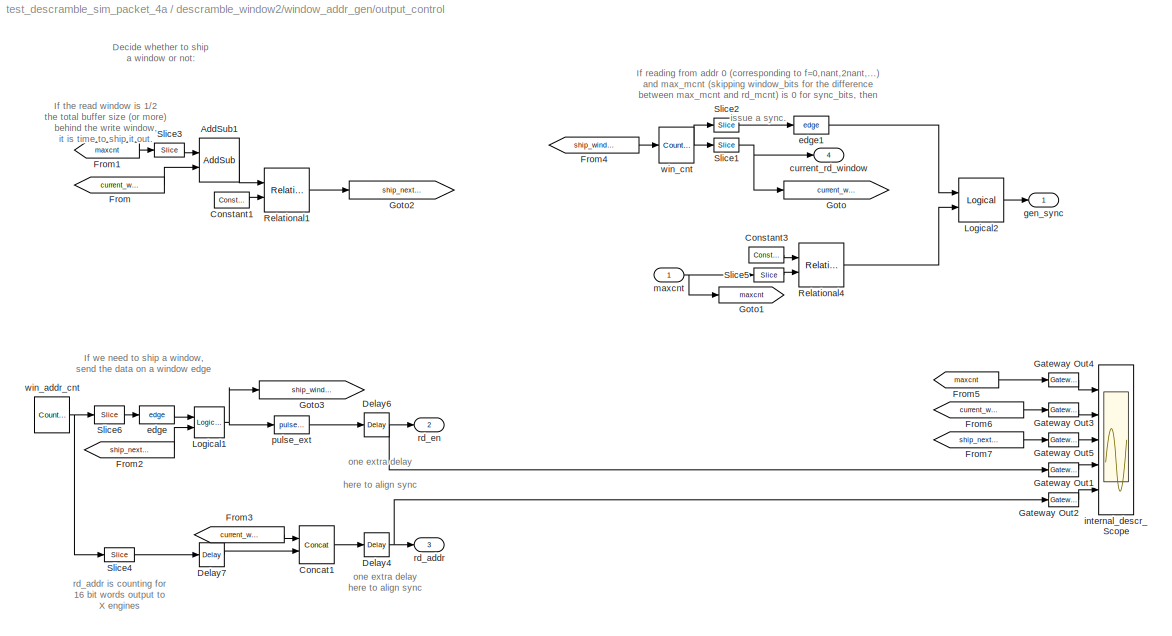
BLOCK [SubSystem] descramble_window2/window_addr_gen/output_control
  MinAlgLoopOccurrences = off
  Ports = [1, 4]
  RTWSystemCode = Auto
  TreatAsAtomicUnit = off
BLOCK [Reference] descramble_window2/window_addr_gen/output_control/AddSub1  REF=xbsIndex_r3/AddSub
  Ports = [2, 1]
  SourceBlock = xbsIndex_r3/AddSub
  SourceType = Xilinx Adder/Subtractor
  arith_type = Unsigned
  bin_pt = 0
  dbl_ovrd = off
  en = off
  explicit_period = off
  gen_core = off
  latency = 2
  mode = Subtraction
  n_bits = window_bits
  overflow = Wrap
  period = 1
  pipeline = off
  precision = User Defined
  quantization = Truncate
  show_param = off
  use_carryin = off
  use_carryout = off
  use_core = on
  use_rpm = on
  xl_area = [0, 0, 0, 0, 0, 0, 0]
  xl_use_area = off
BLOCK [Reference] descramble_window2/window_addr_gen/output_control/Concat1  REF=xbsIndex_r3/Concat
  Ports = [2, 1]
  SourceBlock = xbsIndex_r3/Concat
  SourceType = Xilinx Bus Concatenator
  dbl_ovrd = off
  explicit_period = off
  num_inputs = 2
  period = 1
BLOCK [Reference] descramble_window2/window_addr_gen/output_control/Constant1  REF=xbsIndex_r3/Constant
  Ports = [0, 1]
  SourceBlock = xbsIndex_r3/Constant
  SourceType = Xilinx Constant Block
  arith_type = Unsigned
  bin_pt = 0
  carry = CIN
  const = 2^(window_bits - 1)
  dbl_ovrd = off
  equ = P=C
  explicit_period = on
  inp1 = P
  inp2 = PCIN>>17
  iostate = 0
  n_bits = window_bits
  opr = +
  opselect = C
  period = 1
BLOCK [Reference] descramble_window2/window_addr_gen/output_control/Constant3  REF=xbsIndex_r3/Constant
  Ports = [0, 1]
  SourceBlock = xbsIndex_r3/Constant
  SourceType = Xilinx Constant Block
  arith_type = Unsigned
  bin_pt = 0
  carry = CIN
  const = 0
  dbl_ovrd = off
  equ = P=C
  explicit_period = on
  inp1 = P
  inp2 = PCIN>>17
  iostate = 0
  n_bits = sync_bits - x_int_bits - ant_bits - window_bits
  opr = +
  opselect = C
  period = 1
BLOCK [Reference] descramble_window2/window_addr_gen/output_control/Delay4  REF=xbsIndex_r3/Delay
  Ports = [1, 1]
  SourceBlock = xbsIndex_r3/Delay
  SourceType = Xilinx Delay Block
  accept_only_valid = off
  dbl_ovrd = off
  en = off
  explicit_period = off
  init_zero = on
  latency = 1
  period = 1
  reg_retiming = off
  show_param = off
  xl_area = [0, 0, 0, 0, 0, 0, 0]
  xl_use_area = off
BLOCK [Reference] descramble_window2/window_addr_gen/output_control/Delay6  REF=xbsIndex_r3/Delay
  Ports = [1, 1]
  SourceBlock = xbsIndex_r3/Delay
  SourceType = Xilinx Delay Block
  accept_only_valid = off
  dbl_ovrd = off
  en = off
  explicit_period = off
  init_zero = on
  latency = 1
  period = 1
  reg_retiming = off
  show_param = off
  xl_area = [0, 0, 0, 0, 0, 0, 0]
  xl_use_area = off
BLOCK [Reference] descramble_window2/window_addr_gen/output_control/Delay7  REF=xbsIndex_r3/Delay
  Ports = [1, 1]
  SourceBlock = xbsIndex_r3/Delay
  SourceType = Xilinx Delay Block
  accept_only_valid = off
  dbl_ovrd = off
  en = off
  explicit_period = off
  init_zero = on
  latency = 1
  period = 1
  reg_retiming = off
  show_param = off
  xl_area = [0, 0, 0, 0, 0, 0, 0]
  xl_use_area = off
BLOCK [From] descramble_window2/window_addr_gen/output_control/From
  CloseFcn = tagdialog Close
  GotoTag = current_window
BLOCK [From] descramble_window2/window_addr_gen/output_control/From1
  CloseFcn = tagdialog Close
  GotoTag = maxcnt
BLOCK [From] descramble_window2/window_addr_gen/output_control/From2
  CloseFcn = tagdialog Close
  GotoTag = ship_next_window
BLOCK [From] descramble_window2/window_addr_gen/output_control/From3
  CloseFcn = tagdialog Close
  GotoTag = current_window
BLOCK [From] descramble_window2/window_addr_gen/output_control/From4
  CloseFcn = tagdialog Close
  GotoTag = ship_window_now
BLOCK [From] descramble_window2/window_addr_gen/output_control/From5
  CloseFcn = tagdialog Close
  GotoTag = maxcnt
BLOCK [From] descramble_window2/window_addr_gen/output_control/From6
  CloseFcn = tagdialog Close
  GotoTag = current_window
BLOCK [From] descramble_window2/window_addr_gen/output_control/From7
  CloseFcn = tagdialog Close
  GotoTag = ship_next_window
BLOCK [Reference] descramble_window2/window_addr_gen/output_control/Gateway Out1  REF=xbsIndex_r3/Gateway Out
  LOCs = {}
  Ports = [1, 1]
  SourceBlock = xbsIndex_r3/Gateway Out
  SourceType = Xilinx Gateway Out
  arith_type = Boolean
  bin_pt = 6
  hdl_port = off
  locs_specified = off
  nbits = 8
  needs_fixed_name = off
  output_type = Double
  overflow = Wrap
  quantization = Truncate
  show_param = off
  timing_constraint = None
  xl_area = [0, 0, 0, 0, 0, 0, 0]
  xl_use_area = off
BLOCK [Reference] descramble_window2/window_addr_gen/output_control/Gateway Out2  REF=xbsIndex_r3/Gateway Out
  LOCs = {}
  Ports = [1, 1]
  SourceBlock = xbsIndex_r3/Gateway Out
  SourceType = Xilinx Gateway Out
  arith_type = Boolean
  bin_pt = 6
  hdl_port = off
  locs_specified = off
  nbits = 8
  needs_fixed_name = off
  output_type = Double
  overflow = Wrap
  quantization = Truncate
  show_param = off
  timing_constraint = None
  xl_area = [0, 0, 0, 0, 0, 0, 0]
  xl_use_area = off
BLOCK [Reference] descramble_window2/window_addr_gen/output_control/Gateway Out3  REF=xbsIndex_r3/Gateway Out
  LOCs = {}
  Ports = [1, 1]
  SourceBlock = xbsIndex_r3/Gateway Out
  SourceType = Xilinx Gateway Out
  arith_type = Boolean
  bin_pt = 6
  hdl_port = off
  locs_specified = off
  nbits = 8
  needs_fixed_name = off
  output_type = Double
  overflow = Wrap
  quantization = Truncate
  show_param = off
  timing_constraint = None
  xl_area = [0, 0, 0, 0, 0, 0, 0]
  xl_use_area = off
BLOCK [Reference] descramble_window2/window_addr_gen/output_control/Gateway Out4  REF=xbsIndex_r3/Gateway Out
  LOCs = {}
  Ports = [1, 1]
  SourceBlock = xbsIndex_r3/Gateway Out
  SourceType = Xilinx Gateway Out
  arith_type = Boolean
  bin_pt = 6
  hdl_port = off
  locs_specified = off
  nbits = 8
  needs_fixed_name = off
  output_type = Double
  overflow = Wrap
  quantization = Truncate
  show_param = off
  timing_constraint = None
  xl_area = [0, 0, 0, 0, 0, 0, 0]
  xl_use_area = off
BLOCK [Reference] descramble_window2/window_addr_gen/output_control/Gateway Out5  REF=xbsIndex_r3/Gateway Out
  LOCs = {}
  Ports = [1, 1]
  SourceBlock = xbsIndex_r3/Gateway Out
  SourceType = Xilinx Gateway Out
  arith_type = Boolean
  bin_pt = 6
  hdl_port = off
  locs_specified = off
  nbits = 8
  needs_fixed_name = off
  output_type = Double
  overflow = Wrap
  quantization = Truncate
  show_param = off
  timing_constraint = None
  xl_area = [0, 0, 0, 0, 0, 0, 0]
  xl_use_area = off
BLOCK [Goto] descramble_window2/window_addr_gen/output_control/Goto
  GotoTag = current_window
  TagVisibility = local
BLOCK [Goto] descramble_window2/window_addr_gen/output_control/Goto1
  GotoTag = maxcnt
  TagVisibility = local
BLOCK [Goto] descramble_window2/window_addr_gen/output_control/Goto2
  GotoTag = ship_next_window
  TagVisibility = local
BLOCK [Goto] descramble_window2/window_addr_gen/output_control/Goto3
  GotoTag = ship_window_now
  TagVisibility = local
BLOCK [Reference] descramble_window2/window_addr_gen/output_control/Logical1  REF=xbsIndex_r3/Logical
  Ports = [2, 1]
  SourceBlock = xbsIndex_r3/Logical
  SourceType = Xilinx Logical Block
  align_bp = on
  arith_type = Unsigned
  bin_pt = 2
  dbl_ovrd = off
  en = off
  explicit_period = off
  inputs = 2
  latency = 0
  logical_function = AND
  n_bits = 8
  period = 1
  precision = Full
  show_param = off
  xl_area = [0, 0, 0, 0, 0, 0, 0]
  xl_use_area = off
BLOCK [Reference] descramble_window2/window_addr_gen/output_control/Logical2  REF=xbsIndex_r3/Logical
  Ports = [2, 1]
  SourceBlock = xbsIndex_r3/Logical
  SourceType = Xilinx Logical Block
  align_bp = on
  arith_type = Unsigned
  bin_pt = 2
  dbl_ovrd = off
  en = off
  explicit_period = off
  inputs = 2
  latency = 0
  logical_function = AND
  n_bits = 8
  period = 1
  precision = Full
  show_param = off
  xl_area = [0, 0, 0, 0, 0, 0, 0]
  xl_use_area = off
BLOCK [Reference] descramble_window2/window_addr_gen/output_control/Relational1  REF=xbsIndex_r3/Relational
  Ports = [2, 1]
  SourceBlock = xbsIndex_r3/Relational
  SourceType = Xilinx Relational Block
  dbl_ovrd = off
  en = off
  explicit_period = on
  latency = 1
  mode = a>=b
  period = 1
  show_param = off
  xl_area = [0, 0, 0, 0, 0, 0, 0]
  xl_use_area = off
BLOCK [Reference] descramble_window2/window_addr_gen/output_control/Relational4  REF=xbsIndex_r3/Relational
  Ports = [2, 1]
  SourceBlock = xbsIndex_r3/Relational
  SourceType = Xilinx Relational Block
  dbl_ovrd = off
  en = off
  explicit_period = off
  latency = 1
  mode = a=b
  period = 1
  show_param = off
  xl_area = [0, 0, 0, 0, 0, 0, 0]
  xl_use_area = off
BLOCK [Reference] descramble_window2/window_addr_gen/output_control/Slice1  REF=xbsIndex_r3/Slice
  Ports = [1, 1]
  SourceBlock = xbsIndex_r3/Slice
  SourceType = Xilinx Slice Block
  base0 = LSB of Input
  base1 = MSB of Input
  bit0 = 0
  bit1 = 0
  boolean_output = off
  dbl_ovrd = off
  explicit_period = off
  mode = Lower Bit Location + Width
  nbits = window_bits
  period = 1
BLOCK [Reference] descramble_window2/window_addr_gen/output_control/Slice2  REF=xbsIndex_r3/Slice
  Ports = [1, 1]
  SourceBlock = xbsIndex_r3/Slice
  SourceType = Xilinx Slice Block
  base0 = LSB of Input
  base1 = MSB of Input
  bit0 = 0
  bit1 = 0
  boolean_output = on
  dbl_ovrd = off
  explicit_period = off
  mode = Upper Bit Location + Width
  nbits = 1
  period = 1
BLOCK [Reference] descramble_window2/window_addr_gen/output_control/Slice3  REF=xbsIndex_r3/Slice
  Ports = [1, 1]
  SourceBlock = xbsIndex_r3/Slice
  SourceType = Xilinx Slice Block
  base0 = LSB of Input
  base1 = MSB of Input
  bit0 = 0
  bit1 = 0
  boolean_output = off
  dbl_ovrd = off
  explicit_period = off
  mode = Lower Bit Location + Width
  nbits = window_bits
  period = 1
BLOCK [Reference] descramble_window2/window_addr_gen/output_control/Slice4  REF=xbsIndex_r3/Slice
  Ports = [1, 1]
  SourceBlock = xbsIndex_r3/Slice
  SourceType = Xilinx Slice Block
  base0 = LSB of Input
  base1 = MSB of Input
  bit0 = 0
  bit1 = 0
  boolean_output = off
  dbl_ovrd = off
  explicit_period = off
  mode = Lower Bit Location + Width
  nbits = x_int_bits + ant_bits
  period = 1
BLOCK [Reference] descramble_window2/window_addr_gen/output_control/Slice5  REF=xbsIndex_r3/Slice
  Ports = [1, 1]
  SourceBlock = xbsIndex_r3/Slice
  SourceType = Xilinx Slice Block
  base0 = LSB of Input
  base1 = LSB of Input
  bit0 = window_bits
  bit1 = sync_bits - x_int_bits - ant_bits - 1
  boolean_output = off
  dbl_ovrd = off
  explicit_period = off
  mode = Two Bit Locations
  nbits = window_bits
  period = 1
BLOCK [Reference] descramble_window2/window_addr_gen/output_control/Slice6  REF=xbsIndex_r3/Slice
  Ports = [1, 1]
  SourceBlock = xbsIndex_r3/Slice
  SourceType = Xilinx Slice Block
  base0 = LSB of Input
  base1 = MSB of Input
  bit0 = 0
  bit1 = 0
  boolean_output = on
  dbl_ovrd = off
  explicit_period = off
  mode = Upper Bit Location + Width
  nbits = 1
  period = 1
BLOCK [Outport] descramble_window2/window_addr_gen/output_control/current_rd_window
  IconDisplay = Port number
  Port = 4
BLOCK [Reference] descramble_window2/window_addr_gen/output_control/edge  REF=casper_library/Misc/edge  (lib defined in mdl_138b2fc3435f, mdl_4ed325b712b3, +2 more)
  Ports = [1, 1]
  ShowPortLabels = on
  SourceBlock = casper_library/Misc/edge
  SourceType = edge
BLOCK [Reference] descramble_window2/window_addr_gen/output_control/edge1  REF=casper_library/Misc/edge  (lib defined in mdl_138b2fc3435f, mdl_4ed325b712b3, +2 more)
  Ports = [1, 1]
  ShowPortLabels = on
  SourceBlock = casper_library/Misc/edge
  SourceType = edge
BLOCK [Outport] descramble_window2/window_addr_gen/output_control/gen_sync
  IconDisplay = Port number
BLOCK [Scope] descramble_window2/window_addr_gen/output_control/internal_descr_Scope
  DataFormat = StructureWithTime
  LimitDataPoints = off
  NumInputPorts = 5
  Ports = [5]
  SaveName = ScopeData2
  TimeRange = 1
  YMax = 1~1~1.05~5~5
  YMin = -1~-1~0.95~-5~-5
  ZoomMode = xonly
BLOCK [Inport] descramble_window2/window_addr_gen/output_control/maxcnt
  IconDisplay = Port number
  LatchInput = off
  Port = 1
BLOCK [Reference] descramble_window2/window_addr_gen/output_control/pulse_ext  REF=casper_library/Misc/pulse_ext  (lib defined in mdl_138b2fc3435f, mdl_4ed325b712b3, +2 more)
  Ports = [1, 1]
  ShowPortLabels = on
  SourceBlock = casper_library/Misc/pulse_ext
  SourceType = pulse_ext
  pulse_len = 2^(x_int_bits + ant_bits)
BLOCK [Outport] descramble_window2/window_addr_gen/output_control/rd_addr
  IconDisplay = Port number
  Port = 3
BLOCK [Outport] descramble_window2/window_addr_gen/output_control/rd_en
  IconDisplay = Port number
  Port = 2
BLOCK [Reference] descramble_window2/window_addr_gen/output_control/win_addr_cnt  REF=xbsIndex_r3/Counter
  Ports = [0, 1]
  SourceBlock = xbsIndex_r3/Counter
  SourceType = Xilinx Counter Block
  arith_type = Unsigned
  bin_pt = 0
  cnt_by_val = 1
  cnt_to = Inf
  cnt_type = Free Running
  dbl_ovrd = off
  en = off
  explicit_period = off
  gen_core = off
  load_pin = off
  n_bits = x_int_bits + ant_bits + 1
  operation = Up
  period = 1
  rst = off
  show_param = off
  start_count = 0
  use_rpm = on
  xl_area = [0, 0, 0, 0, 0, 0, 0]
  xl_use_area = off
BLOCK [Reference] descramble_window2/window_addr_gen/output_control/win_cnt  REF=xbsIndex_r3/Counter
  Ports = [1, 1]
  SourceBlock = xbsIndex_r3/Counter
  SourceType = Xilinx Counter Block
  arith_type = Unsigned
  bin_pt = 0
  cnt_by_val = 1
  cnt_to = Inf
  cnt_type = Free Running
  dbl_ovrd = off
  en = on
  explicit_period = off
  gen_core = off
  load_pin = off
  n_bits = window_bits + 1
  operation = Up
  period = 1
  rst = off
  show_param = off
  start_count = 0
  use_rpm = on
  xl_area = [0, 0, 0, 0, 0, 0, 0]
  xl_use_area = off
BLOCK [Outport] descramble_window2/window_addr_gen/rd_addr
  BusOutputAsStruct = off
  IconDisplay = Port number
BLOCK [Outport] descramble_window2/window_addr_gen/re
  BusOutputAsStruct = off
  IconDisplay = Port number
  Port = 2
BLOCK [Outport] descramble_window2/window_addr_gen/sync_out
  BusOutputAsStruct = off
  IconDisplay = Port number
  Port = 5
BLOCK [Inport] descramble_window2/window_addr_gen/valid
  IconDisplay = Port number
  LatchInput = off
  Port = 4
BLOCK [Outport] descramble_window2/window_addr_gen/we
  BusOutputAsStruct = off
  IconDisplay = Port number
  Port = 4
BLOCK [Outport] descramble_window2/window_addr_gen/wr_addr
  BusOutputAsStruct = off
  IconDisplay = Port number
  Port = 3
BLOCK [Reference] descramble_window2/window_addr_gen/wr_addr_cnt  REF=xbsIndex_r3/Counter
  Ports = [2, 1]
  SourceBlock = xbsIndex_r3/Counter
  SourceType = Xilinx Counter Block
  arith_type = Unsigned
  bin_pt = 0
  cnt_by_val = 1
  cnt_to = Inf
  cnt_type = Free Running
  dbl_ovrd = off
  en = on
  explicit_period = off
  gen_core = off
  load_pin = off
  n_bits = x_int_bits - 2
  operation = Up
  period = 1
  rst = on
  show_param = off
  start_count = 0
  use_rpm = on
  xl_area = [0, 0, 0, 0, 0, 0, 0]
  xl_use_area = off
BLOCK [SubSystem] descramble_window_old
  MaskCallbackString = |||
  MaskDescription = Valids between sync pulses: Would like this to come after every dram_vecc_len: valids_bet_syncs = xeng_int_len * num_ants * freqs_per_xeng. Normally, num_ants = num_xeng so this simplifies to xeng_int_len * n_chans.
  MaskEnableString = on,on,on,on
  MaskIconFrame = on
  MaskIconOpaque = on
  MaskIconRotate = none
  MaskIconUnits = autoscale
  MaskPromptString = Maximum Number of Antennas (2^?):|X Engine Integration Length (2^?):|Number of Windows to Buffer (2^?):|Samples Between Sync Pulses (2^?)
  MaskStyleString = edit,edit,edit,edit
  MaskTabNameString = ,,,
  MaskToolTipString = on,on,on,on
  MaskTunableValueString = on,on,on,on
  MaskValueString = 2|5|3|11
  MaskVarAliasString = ,,,
  MaskVariables = ant_bits=@1;x_int_bits=@2;window_bits=@3;sync_bits=@4;
  MaskVisibilityString = on,on,on,on
  MinAlgLoopOccurrences = off
  Ports = [6, 5]
  RTWSystemCode = Auto
  TreatAsAtomicUnit = off
BLOCK [Reference] descramble_window_old/Constant  REF=xbsIndex_r3/Constant
  Ports = [0, 1]
  SourceBlock = xbsIndex_r3/Constant
  SourceType = Xilinx Constant Block
  arith_type = Unsigned
  bin_pt = 0
  carry = CIN
  const = 0
  dbl_ovrd = off
  equ = P=C
  explicit_period = on
  inp1 = P
  inp2 = PCIN>>17
  iostate = 0
  n_bits = 18
  opr = +
  opselect = C
  period = 1
BLOCK [Reference] descramble_window_old/Constant1  REF=xbsIndex_r3/Constant
  Ports = [0, 1]
  SourceBlock = xbsIndex_r3/Constant
  SourceType = Xilinx Constant Block
  arith_type = Unsigned
  bin_pt = 0
  carry = CIN
  const = 0
  dbl_ovrd = off
  equ = P=C
  explicit_period = off
  inp1 = P
  inp2 = PCIN>>17
  iostate = 0
  n_bits = 1
  opr = +
  opselect = C
  period = 1
BLOCK [Reference] descramble_window_old/Delay1  REF=xbsIndex_r3/Delay
  Ports = [1, 1]
  SourceBlock = xbsIndex_r3/Delay
  SourceType = Xilinx Delay Block
  accept_only_valid = off
  dbl_ovrd = off
  en = off
  explicit_period = off
  init_zero = on
  latency = 2
  period = 1
  reg_retiming = off
  show_param = off
  xl_area = [0, 0, 0, 0, 0, 0, 0]
  xl_use_area = off
BLOCK [Reference] descramble_window_old/Delay2  REF=xbsIndex_r3/Delay
  Ports = [1, 1]
  SourceBlock = xbsIndex_r3/Delay
  SourceType = Xilinx Delay Block
  accept_only_valid = off
  dbl_ovrd = off
  en = off
  explicit_period = off
  init_zero = on
  latency = 4
  period = 1
  reg_retiming = off
  show_param = off
  xl_area = [0, 0, 0, 0, 0, 0, 0]
  xl_use_area = off
BLOCK [Reference] descramble_window_old/Delay3  REF=xbsIndex_r3/Delay
  Ports = [1, 1]
  SourceBlock = xbsIndex_r3/Delay
  SourceType = Xilinx Delay Block
  accept_only_valid = off
  dbl_ovrd = off
  en = off
  explicit_period = off
  init_zero = on
  latency = 2
  period = 1
  reg_retiming = off
  show_param = off
  xl_area = [0, 0, 0, 0, 0, 0, 0]
  xl_use_area = off
BLOCK [Reference] descramble_window_old/Delay4  REF=xbsIndex_r3/Delay
  Ports = [1, 1]
  SourceBlock = xbsIndex_r3/Delay
  SourceType = Xilinx Delay Block
  accept_only_valid = off
  dbl_ovrd = off
  en = off
  explicit_period = off
  init_zero = on
  latency = 4
  period = 1
  reg_retiming = off
  show_param = off
  xl_area = [0, 0, 0, 0, 0, 0, 0]
  xl_use_area = off
BLOCK [Reference] descramble_window_old/Dual Port RAM  REF=xbsIndex_r3/Dual Port RAM
  Ports = [6, 4]
  SourceBlock = xbsIndex_r3/Dual Port RAM
  SourceType = Xilinx Dual Port Random Access Memory
  dbl_ovrd = off
  depth = 2^x_int_bits * 2^ant_bits * 2^window_bits
  distributed_mem = off
  explicit_period = off
  gen_core = off
  initVector = 0
  init_a = 0
  init_b = 0
  init_zero = on
  latency = 2
  mem_collision = on
  period = 1
  rst_a = off
  rst_b = off
  show_param = off
  use_rpm = off
  write_mode_A = Read Before Write
  write_mode_B = Read Before Write
  xl_area = [0, 0, 0, 0, 0, 0, 0]
  xl_use_area = off
BLOCK [Reference] descramble_window_old/Gateway Out1  REF=xbsIndex_r3/Gateway Out
  LOCs = {}
  Ports = [1, 1]
  SourceBlock = xbsIndex_r3/Gateway Out
  SourceType = Xilinx Gateway Out
  arith_type = Boolean
  bin_pt = 6
  hdl_port = off
  locs_specified = off
  nbits = 8
  needs_fixed_name = off
  output_type = Double
  overflow = Wrap
  quantization = Truncate
  show_param = off
  timing_constraint = None
  xl_area = [0, 0, 0, 0, 0, 0, 0]
  xl_use_area = off
BLOCK [Reference] descramble_window_old/Gateway Out2  REF=xbsIndex_r3/Gateway Out
  LOCs = {}
  Ports = [1, 1]
  SourceBlock = xbsIndex_r3/Gateway Out
  SourceType = Xilinx Gateway Out
  arith_type = Boolean
  bin_pt = 6
  hdl_port = off
  locs_specified = off
  nbits = 8
  needs_fixed_name = off
  output_type = Double
  overflow = Wrap
  quantization = Truncate
  show_param = off
  timing_constraint = None
  xl_area = [0, 0, 0, 0, 0, 0, 0]
  xl_use_area = off
BLOCK [Reference] descramble_window_old/Gateway Out3  REF=xbsIndex_r3/Gateway Out
  LOCs = {}
  Ports = [1, 1]
  SourceBlock = xbsIndex_r3/Gateway Out
  SourceType = Xilinx Gateway Out
  arith_type = Boolean
  bin_pt = 6
  hdl_port = off
  locs_specified = off
  nbits = 8
  needs_fixed_name = off
  output_type = Double
  overflow = Wrap
  quantization = Truncate
  show_param = off
  timing_constraint = None
  xl_area = [0, 0, 0, 0, 0, 0, 0]
  xl_use_area = off
BLOCK [Reference] descramble_window_old/Gateway Out4  REF=xbsIndex_r3/Gateway Out
  LOCs = {}
  Ports = [1, 1]
  SourceBlock = xbsIndex_r3/Gateway Out
  SourceType = Xilinx Gateway Out
  arith_type = Boolean
  bin_pt = 6
  hdl_port = off
  locs_specified = off
  nbits = 8
  needs_fixed_name = off
  output_type = Double
  overflow = Wrap
  quantization = Truncate
  show_param = off
  timing_constraint = None
  xl_area = [0, 0, 0, 0, 0, 0, 0]
  xl_use_area = off
BLOCK [Reference] descramble_window_old/Gateway Out5  REF=xbsIndex_r3/Gateway Out
  LOCs = {}
  Ports = [1, 1]
  SourceBlock = xbsIndex_r3/Gateway Out
  SourceType = Xilinx Gateway Out
  arith_type = Boolean
  bin_pt = 6
  hdl_port = off
  locs_specified = off
  nbits = 8
  needs_fixed_name = off
  output_type = Double
  overflow = Wrap
  quantization = Truncate
  show_param = off
  timing_constraint = None
  xl_area = [0, 0, 0, 0, 0, 0, 0]
  xl_use_area = off
BLOCK [Reference] descramble_window_old/Mux  REF=xbsIndex_r3/Mux
  Ports = [3, 1]
  SourceBlock = xbsIndex_r3/Mux
  SourceType = Xilinx Multiplexer Block
  arith_type = Signed  (2's comp)
  bin_pt = 2
  dbl_ovrd = off
  en = off
  explicit_period = off
  gen_core = off
  inputs = 2
  latency = 0
  mux_type = off
  n_bits = 8
  overflow = Wrap
  period = 1
  precision = Full
  quantization = Truncate
  show_param = off
  use_rpm = off
  xl_area = [0, 0, 0, 0, 0, 0, 0]
  xl_use_area = off
BLOCK [Inport] descramble_window_old/ant
  IconDisplay = Port number
  LatchInput = off
  Port = 5
BLOCK [SubSystem] descramble_window_old/deflagger
  MinAlgLoopOccurrences = off
  Ports = [1, 3]
  RTWSystemCode = Auto
  TreatAsAtomicUnit = off
BLOCK [Reference] descramble_window_old/deflagger/Slice1  REF=xbsIndex_r3/Slice
  Ports = [1, 1]
  SourceBlock = xbsIndex_r3/Slice
  SourceType = Xilinx Slice Block
  base0 = LSB of Input
  base1 = MSB of Input
  bit0 = 0
  bit1 = 0
  boolean_output = off
  dbl_ovrd = off
  explicit_period = off
  mode = Lower Bit Location + Width
  nbits = 16
  period = 1
BLOCK [Reference] descramble_window_old/deflagger/Slice2  REF=xbsIndex_r3/Slice
  Ports = [1, 1]
  SourceBlock = xbsIndex_r3/Slice
  SourceType = Xilinx Slice Block
  base0 = LSB of Input
  base1 = MSB of Input
  bit0 = 0
  bit1 = -1
  boolean_output = on
  dbl_ovrd = off
  explicit_period = off
  mode = Upper Bit Location + Width
  nbits = 1
  period = 1
BLOCK [Reference] descramble_window_old/deflagger/Slice3  REF=xbsIndex_r3/Slice
  Ports = [1, 1]
  SourceBlock = xbsIndex_r3/Slice
  SourceType = Xilinx Slice Block
  base0 = LSB of Input
  base1 = MSB of Input
  bit0 = 0
  bit1 = 0
  boolean_output = on
  dbl_ovrd = off
  explicit_period = off
  mode = Upper Bit Location + Width
  nbits = 1
  period = 1
BLOCK [Inport] descramble_window_old/deflagger/din
  IconDisplay = Port number
  LatchInput = off
  Port = 1
BLOCK [Outport] descramble_window_old/deflagger/dout
  BusOutputAsStruct = off
  IconDisplay = Port number
BLOCK [Outport] descramble_window_old/deflagger/flag
  BusOutputAsStruct = off
  IconDisplay = Port number
  Port = 2
BLOCK [Outport] descramble_window_old/deflagger/rcvd
  BusOutputAsStruct = off
  IconDisplay = Port number
  Port = 3
BLOCK [Inport] descramble_window_old/din
  IconDisplay = Port number
  LatchInput = off
  Port = 1
BLOCK [Outport] descramble_window_old/dout
  BusOutputAsStruct = off
  IconDisplay = Port number
BLOCK [Inport] descramble_window_old/eof
  IconDisplay = Port number
  LatchInput = off
  Port = 3
BLOCK [Inport] descramble_window_old/flag
  IconDisplay = Port number
  LatchInput = off
  Port = 6
BLOCK [Outport] descramble_window_old/flag_out
  BusOutputAsStruct = off
  IconDisplay = Port number
  Port = 2
BLOCK [SubSystem] descramble_window_old/flagger
  MinAlgLoopOccurrences = off
  Ports = [2, 1]
  RTWSystemCode = Auto
  TreatAsAtomicUnit = off
BLOCK [Reference] descramble_window_old/flagger/Concat  REF=xbsIndex_r3/Concat
  Ports = [12, 1]
  SourceBlock = xbsIndex_r3/Concat
  SourceType = Xilinx Bus Concatenator
  dbl_ovrd = off
  explicit_period = off
  num_inputs = 12
  period = 1
BLOCK [Reference] descramble_window_old/flagger/Constant1  REF=xbsIndex_r3/Constant
  Ports = [0, 1]
  SourceBlock = xbsIndex_r3/Constant
  SourceType = Xilinx Constant Block
  arith_type = Unsigned
  bin_pt = 0
  carry = CIN
  const = 1
  dbl_ovrd = off
  equ = P=C
  explicit_period = on
  inp1 = P
  inp2 = PCIN>>17
  iostate = 0
  n_bits = 1
  opr = +
  opselect = C
  period = 1
BLOCK [Reference] descramble_window_old/flagger/Constant2  REF=xbsIndex_r3/Constant
  Ports = [0, 1]
  SourceBlock = xbsIndex_r3/Constant
  SourceType = Xilinx Constant Block
  arith_type = Unsigned
  bin_pt = 0
  carry = CIN
  const = 1
  dbl_ovrd = off
  equ = P=C
  explicit_period = on
  inp1 = P
  inp2 = PCIN>>17
  iostate = 0
  n_bits = 1
  opr = +
  opselect = C
  period = 1
BLOCK [Reference] descramble_window_old/flagger/Constant3  REF=xbsIndex_r3/Constant
  Ports = [0, 1]
  SourceBlock = xbsIndex_r3/Constant
  SourceType = Xilinx Constant Block
  arith_type = Unsigned
  bin_pt = 0
  carry = CIN
  const = 1
  dbl_ovrd = off
  equ = P=C
  explicit_period = on
  inp1 = P
  inp2 = PCIN>>17
  iostate = 0
  n_bits = 1
  opr = +
  opselect = C
  period = 1
BLOCK [Reference] descramble_window_old/flagger/Constant4  REF=xbsIndex_r3/Constant
  Ports = [0, 1]
  SourceBlock = xbsIndex_r3/Constant
  SourceType = Xilinx Constant Block
  arith_type = Unsigned
  bin_pt = 0
  carry = CIN
  const = 1
  dbl_ovrd = off
  equ = P=C
  explicit_period = on
  inp1 = P
  inp2 = PCIN>>17
  iostate = 0
  n_bits = 1
  opr = +
  opselect = C
  period = 1
BLOCK [Reference] descramble_window_old/flagger/Slice1  REF=xbsIndex_r3/Slice
  Ports = [1, 1]
  SourceBlock = xbsIndex_r3/Slice
  SourceType = Xilinx Slice Block
  base0 = LSB of Input
  base1 = MSB of Input
  bit0 = 0
  bit1 = 0
  boolean_output = off
  dbl_ovrd = off
  explicit_period = off
  mode = Lower Bit Location + Width
  nbits = 16
  period = 1
BLOCK [Reference] descramble_window_old/flagger/Slice2  REF=xbsIndex_r3/Slice
  Ports = [1, 1]
  SourceBlock = xbsIndex_r3/Slice
  SourceType = Xilinx Slice Block
  base0 = LSB of Input
  base1 = MSB of Input
  bit0 = 16
  bit1 = 0
  boolean_output = off
  dbl_ovrd = off
  explicit_period = off
  mode = Lower Bit Location + Width
  nbits = 16
  period = 1
BLOCK [Reference] descramble_window_old/flagger/Slice3  REF=xbsIndex_r3/Slice
  Ports = [1, 1]
  SourceBlock = xbsIndex_r3/Slice
  SourceType = Xilinx Slice Block
  base0 = LSB of Input
  base1 = MSB of Input
  bit0 = 32
  bit1 = 0
  boolean_output = off
  dbl_ovrd = off
  explicit_period = off
  mode = Lower Bit Location + Width
  nbits = 16
  period = 1
BLOCK [Reference] descramble_window_old/flagger/Slice4  REF=xbsIndex_r3/Slice
  Ports = [1, 1]
  SourceBlock = xbsIndex_r3/Slice
  SourceType = Xilinx Slice Block
  base0 = LSB of Input
  base1 = MSB of Input
  bit0 = 48
  bit1 = 0
  boolean_output = off
  dbl_ovrd = off
  explicit_period = off
  mode = Lower Bit Location + Width
  nbits = 16
  period = 1
BLOCK [Inport] descramble_window_old/flagger/din
  IconDisplay = Port number
  LatchInput = off
  Port = 2
BLOCK [Outport] descramble_window_old/flagger/dout
  BusOutputAsStruct = off
  IconDisplay = Port number
BLOCK [Inport] descramble_window_old/flagger/flag
  IconDisplay = Port number
  LatchInput = off
  Port = 1
BLOCK [Scope] descramble_window_old/internal_descr_Scope
  DataFormat = StructureWithTime
  LimitDataPoints = off
  NumInputPorts = 5
  Ports = [5]
  SaveName = ScopeData11
  TimeRange = 1
  YMax = 1~1~1.05~5~5
  YMin = -1~-1~0.95~-5~-5
  ZoomMode = xonly
BLOCK [Inport] descramble_window_old/mcnt
  IconDisplay = Port number
  LatchInput = off
  Port = 4
BLOCK [Outport] descramble_window_old/rcvd
  BusOutputAsStruct = off
  IconDisplay = Port number
  Port = 4
BLOCK [Outport] descramble_window_old/sync_out
  BusOutputAsStruct = off
  IconDisplay = Port number
  Port = 5
BLOCK [Outport] descramble_window_old/valid
  BusOutputAsStruct = off
  IconDisplay = Port number
  Port = 3
BLOCK [Inport] descramble_window_old/we
  IconDisplay = Port number
  LatchInput = off
  Port = 2
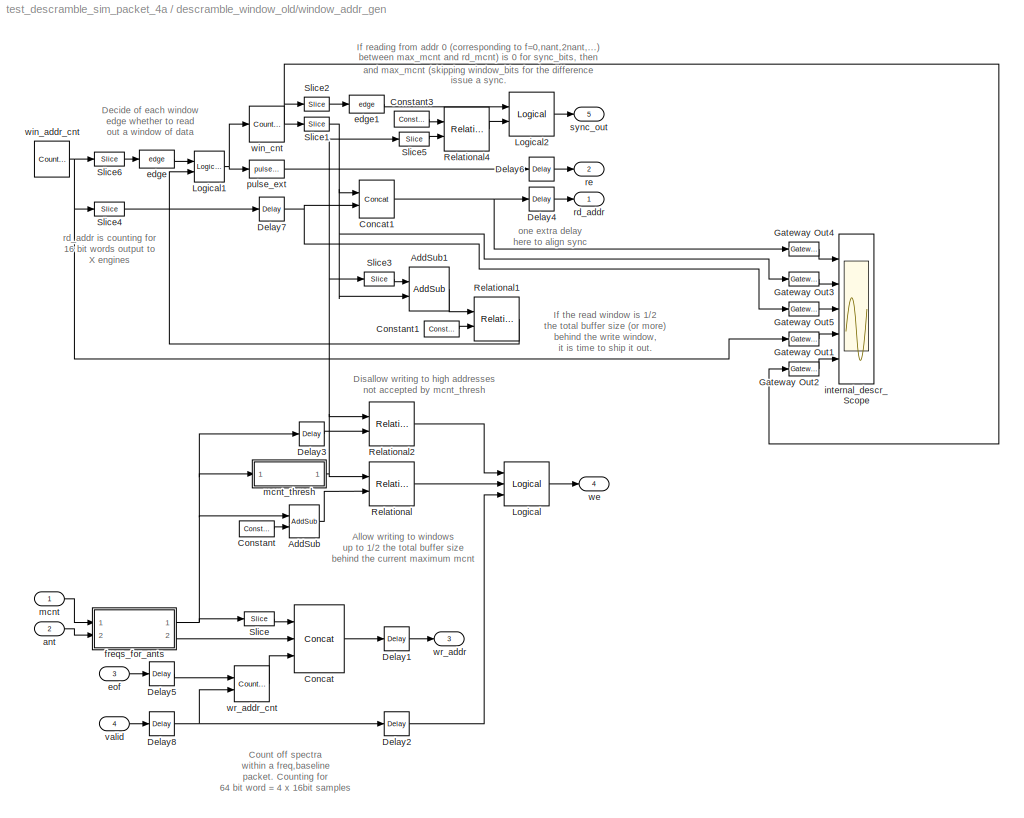
BLOCK [SubSystem] descramble_window_old/window_addr_gen
  MinAlgLoopOccurrences = off
  Ports = [4, 5]
  RTWSystemCode = Auto
  TreatAsAtomicUnit = off
BLOCK [Reference] descramble_window_old/window_addr_gen/AddSub  REF=xbsIndex_r3/AddSub
  Ports = [2, 1]
  SourceBlock = xbsIndex_r3/AddSub
  SourceType = Xilinx Adder/Subtractor
  arith_type = Unsigned
  bin_pt = 0
  dbl_ovrd = off
  en = off
  explicit_period = off
  gen_core = off
  latency = 2
  mode = Addition
  n_bits = 48 - ant_bits
  overflow = Wrap
  period = 1
  pipeline = off
  precision = User Defined
  quantization = Truncate
  show_param = off
  use_carryin = off
  use_carryout = off
  use_core = on
  use_rpm = on
  xl_area = [0, 0, 0, 0, 0, 0, 0]
  xl_use_area = off
BLOCK [Reference] descramble_window_old/window_addr_gen/AddSub1  REF=xbsIndex_r3/AddSub
  Ports = [2, 1]
  SourceBlock = xbsIndex_r3/AddSub
  SourceType = Xilinx Adder/Subtractor
  arith_type = Unsigned
  bin_pt = 0
  dbl_ovrd = off
  en = off
  explicit_period = off
  gen_core = off
  latency = 2
  mode = Subtraction
  n_bits = window_bits
  overflow = Wrap
  period = 1
  pipeline = off
  precision = User Defined
  quantization = Truncate
  show_param = off
  use_carryin = off
  use_carryout = off
  use_core = on
  use_rpm = on
  xl_area = [0, 0, 0, 0, 0, 0, 0]
  xl_use_area = off
BLOCK [Reference] descramble_window_old/window_addr_gen/Concat  REF=xbsIndex_r3/Concat
  Ports = [3, 1]
  SourceBlock = xbsIndex_r3/Concat
  SourceType = Xilinx Bus Concatenator
  dbl_ovrd = off
  explicit_period = off
  num_inputs = 3
  period = 1
BLOCK [Reference] descramble_window_old/window_addr_gen/Concat1  REF=xbsIndex_r3/Concat
  Ports = [2, 1]
  SourceBlock = xbsIndex_r3/Concat
  SourceType = Xilinx Bus Concatenator
  dbl_ovrd = off
  explicit_period = off
  num_inputs = 2
  period = 1
BLOCK [Reference] descramble_window_old/window_addr_gen/Constant  REF=xbsIndex_r3/Constant
  Ports = [0, 1]
  SourceBlock = xbsIndex_r3/Constant
  SourceType = Xilinx Constant Block
  arith_type = Unsigned
  bin_pt = 0
  carry = CIN
  const = 2^(window_bits - 1)
  dbl_ovrd = off
  equ = P=C
  explicit_period = on
  inp1 = P
  inp2 = PCIN>>17
  iostate = 0
  n_bits = 48 - ant_bits
  opr = +
  opselect = C
  period = 1
BLOCK [Reference] descramble_window_old/window_addr_gen/Constant1  REF=xbsIndex_r3/Constant
  Ports = [0, 1]
  SourceBlock = xbsIndex_r3/Constant
  SourceType = Xilinx Constant Block
  arith_type = Unsigned
  bin_pt = 0
  carry = CIN
  const = 2^(window_bits - 1)
  dbl_ovrd = off
  equ = P=C
  explicit_period = on
  inp1 = P
  inp2 = PCIN>>17
  iostate = 0
  n_bits = window_bits
  opr = +
  opselect = C
  period = 1
BLOCK [Reference] descramble_window_old/window_addr_gen/Constant3  REF=xbsIndex_r3/Constant
  Ports = [0, 1]
  SourceBlock = xbsIndex_r3/Constant
  SourceType = Xilinx Constant Block
  arith_type = Unsigned
  bin_pt = 0
  carry = CIN
  const = 0
  dbl_ovrd = off
  equ = P=C
  explicit_period = on
  inp1 = P
  inp2 = PCIN>>17
  iostate = 0
  n_bits = sync_bits - x_int_bits - ant_bits - window_bits
  opr = +
  opselect = C
  period = 1
BLOCK [Reference] descramble_window_old/window_addr_gen/Delay1  REF=xbsIndex_r3/Delay
  Ports = [1, 1]
  SourceBlock = xbsIndex_r3/Delay
  SourceType = Xilinx Delay Block
  accept_only_valid = off
  dbl_ovrd = off
  en = off
  explicit_period = off
  init_zero = on
  latency = 3
  period = 1
  reg_retiming = off
  show_param = off
  xl_area = [0, 0, 0, 0, 0, 0, 0]
  xl_use_area = off
BLOCK [Reference] descramble_window_old/window_addr_gen/Delay2  REF=xbsIndex_r3/Delay
  Ports = [1, 1]
  SourceBlock = xbsIndex_r3/Delay
  SourceType = Xilinx Delay Block
  accept_only_valid = off
  dbl_ovrd = off
  en = off
  explicit_period = off
  init_zero = on
  latency = 3
  period = 1
  reg_retiming = off
  show_param = off
  xl_area = [0, 0, 0, 0, 0, 0, 0]
  xl_use_area = off
BLOCK [Reference] descramble_window_old/window_addr_gen/Delay3  REF=xbsIndex_r3/Delay
  Ports = [1, 1]
  SourceBlock = xbsIndex_r3/Delay
  SourceType = Xilinx Delay Block
  accept_only_valid = off
  dbl_ovrd = off
  en = off
  explicit_period = off
  init_zero = on
  latency = 2
  period = 1
  reg_retiming = off
  show_param = off
  xl_area = [0, 0, 0, 0, 0, 0, 0]
  xl_use_area = off
BLOCK [Reference] descramble_window_old/window_addr_gen/Delay4  REF=xbsIndex_r3/Delay
  Ports = [1, 1]
  SourceBlock = xbsIndex_r3/Delay
  SourceType = Xilinx Delay Block
  accept_only_valid = off
  dbl_ovrd = off
  en = off
  explicit_period = off
  init_zero = on
  latency = 1
  period = 1
  reg_retiming = off
  show_param = off
  xl_area = [0, 0, 0, 0, 0, 0, 0]
  xl_use_area = off
BLOCK [Reference] descramble_window_old/window_addr_gen/Delay5  REF=xbsIndex_r3/Delay
  Ports = [1, 1]
  SourceBlock = xbsIndex_r3/Delay
  SourceType = Xilinx Delay Block
  accept_only_valid = off
  dbl_ovrd = off
  en = off
  explicit_period = off
  init_zero = on
  latency = 1
  period = 1
  reg_retiming = off
  show_param = off
  xl_area = [0, 0, 0, 0, 0, 0, 0]
  xl_use_area = off
BLOCK [Reference] descramble_window_old/window_addr_gen/Delay6  REF=xbsIndex_r3/Delay
  Ports = [1, 1]
  SourceBlock = xbsIndex_r3/Delay
  SourceType = Xilinx Delay Block
  accept_only_valid = off
  dbl_ovrd = off
  en = off
  explicit_period = off
  init_zero = on
  latency = 1
  period = 1
  reg_retiming = off
  show_param = off
  xl_area = [0, 0, 0, 0, 0, 0, 0]
  xl_use_area = off
BLOCK [Reference] descramble_window_old/window_addr_gen/Delay7  REF=xbsIndex_r3/Delay
  Ports = [1, 1]
  SourceBlock = xbsIndex_r3/Delay
  SourceType = Xilinx Delay Block
  accept_only_valid = off
  dbl_ovrd = off
  en = off
  explicit_period = off
  init_zero = on
  latency = 1
  period = 1
  reg_retiming = off
  show_param = off
  xl_area = [0, 0, 0, 0, 0, 0, 0]
  xl_use_area = off
BLOCK [Reference] descramble_window_old/window_addr_gen/Delay8  REF=xbsIndex_r3/Delay
  Ports = [1, 1]
  SourceBlock = xbsIndex_r3/Delay
  SourceType = Xilinx Delay Block
  accept_only_valid = off
  dbl_ovrd = off
  en = off
  explicit_period = off
  init_zero = on
  latency = 1
  period = 1
  reg_retiming = off
  show_param = off
  xl_area = [0, 0, 0, 0, 0, 0, 0]
  xl_use_area = off
BLOCK [Reference] descramble_window_old/window_addr_gen/Gateway Out1  REF=xbsIndex_r3/Gateway Out
  LOCs = {}
  Ports = [1, 1]
  SourceBlock = xbsIndex_r3/Gateway Out
  SourceType = Xilinx Gateway Out
  arith_type = Boolean
  bin_pt = 6
  hdl_port = off
  locs_specified = off
  nbits = 8
  needs_fixed_name = off
  output_type = Double
  overflow = Wrap
  quantization = Truncate
  show_param = off
  timing_constraint = None
  xl_area = [0, 0, 0, 0, 0, 0, 0]
  xl_use_area = off
BLOCK [Reference] descramble_window_old/window_addr_gen/Gateway Out2  REF=xbsIndex_r3/Gateway Out
  LOCs = {}
  Ports = [1, 1]
  SourceBlock = xbsIndex_r3/Gateway Out
  SourceType = Xilinx Gateway Out
  arith_type = Boolean
  bin_pt = 6
  hdl_port = off
  locs_specified = off
  nbits = 8
  needs_fixed_name = off
  output_type = Double
  overflow = Wrap
  quantization = Truncate
  show_param = off
  timing_constraint = None
  xl_area = [0, 0, 0, 0, 0, 0, 0]
  xl_use_area = off
BLOCK [Reference] descramble_window_old/window_addr_gen/Gateway Out3  REF=xbsIndex_r3/Gateway Out
  LOCs = {}
  Ports = [1, 1]
  SourceBlock = xbsIndex_r3/Gateway Out
  SourceType = Xilinx Gateway Out
  arith_type = Boolean
  bin_pt = 6
  hdl_port = off
  locs_specified = off
  nbits = 8
  needs_fixed_name = off
  output_type = Double
  overflow = Wrap
  quantization = Truncate
  show_param = off
  timing_constraint = None
  xl_area = [0, 0, 0, 0, 0, 0, 0]
  xl_use_area = off
BLOCK [Reference] descramble_window_old/window_addr_gen/Gateway Out4  REF=xbsIndex_r3/Gateway Out
  LOCs = {}
  Ports = [1, 1]
  SourceBlock = xbsIndex_r3/Gateway Out
  SourceType = Xilinx Gateway Out
  arith_type = Boolean
  bin_pt = 6
  hdl_port = off
  locs_specified = off
  nbits = 8
  needs_fixed_name = off
  output_type = Double
  overflow = Wrap
  quantization = Truncate
  show_param = off
  timing_constraint = None
  xl_area = [0, 0, 0, 0, 0, 0, 0]
  xl_use_area = off
BLOCK [Reference] descramble_window_old/window_addr_gen/Gateway Out5  REF=xbsIndex_r3/Gateway Out
  LOCs = {}
  Ports = [1, 1]
  SourceBlock = xbsIndex_r3/Gateway Out
  SourceType = Xilinx Gateway Out
  arith_type = Boolean
  bin_pt = 6
  hdl_port = off
  locs_specified = off
  nbits = 8
  needs_fixed_name = off
  output_type = Double
  overflow = Wrap
  quantization = Truncate
  show_param = off
  timing_constraint = None
  xl_area = [0, 0, 0, 0, 0, 0, 0]
  xl_use_area = off
BLOCK [Reference] descramble_window_old/window_addr_gen/Logical  REF=xbsIndex_r3/Logical
  Ports = [3, 1]
  SourceBlock = xbsIndex_r3/Logical
  SourceType = Xilinx Logical Block
  align_bp = on
  arith_type = Unsigned
  bin_pt = 2
  dbl_ovrd = off
  en = off
  explicit_period = off
  inputs = 3
  latency = 0
  logical_function = AND
  n_bits = 8
  period = 1
  precision = Full
  show_param = off
  xl_area = [0, 0, 0, 0, 0, 0, 0]
  xl_use_area = off
BLOCK [Reference] descramble_window_old/window_addr_gen/Logical1  REF=xbsIndex_r3/Logical
  Ports = [2, 1]
  SourceBlock = xbsIndex_r3/Logical
  SourceType = Xilinx Logical Block
  align_bp = on
  arith_type = Unsigned
  bin_pt = 2
  dbl_ovrd = off
  en = off
  explicit_period = off
  inputs = 2
  latency = 0
  logical_function = AND
  n_bits = 8
  period = 1
  precision = Full
  show_param = off
  xl_area = [0, 0, 0, 0, 0, 0, 0]
  xl_use_area = off
BLOCK [Reference] descramble_window_old/window_addr_gen/Logical2  REF=xbsIndex_r3/Logical
  Ports = [2, 1]
  SourceBlock = xbsIndex_r3/Logical
  SourceType = Xilinx Logical Block
  align_bp = on
  arith_type = Unsigned
  bin_pt = 2
  dbl_ovrd = off
  en = off
  explicit_period = off
  inputs = 2
  latency = 0
  logical_function = AND
  n_bits = 8
  period = 1
  precision = Full
  show_param = off
  xl_area = [0, 0, 0, 0, 0, 0, 0]
  xl_use_area = off
BLOCK [Reference] descramble_window_old/window_addr_gen/Relational  REF=xbsIndex_r3/Relational
  Ports = [2, 1]
  SourceBlock = xbsIndex_r3/Relational
  SourceType = Xilinx Relational Block
  dbl_ovrd = off
  en = off
  explicit_period = off
  latency = 1
  mode = a<b
  period = 1
  show_param = off
  xl_area = [0, 0, 0, 0, 0, 0, 0]
  xl_use_area = off
BLOCK [Reference] descramble_window_old/window_addr_gen/Relational1  REF=xbsIndex_r3/Relational
  Ports = [2, 1]
  SourceBlock = xbsIndex_r3/Relational
  SourceType = Xilinx Relational Block
  dbl_ovrd = off
  en = off
  explicit_period = on
  latency = 1
  mode = a>=b
  period = 1
  show_param = off
  xl_area = [0, 0, 0, 0, 0, 0, 0]
  xl_use_area = off
BLOCK [Reference] descramble_window_old/window_addr_gen/Relational2  REF=xbsIndex_r3/Relational
  Ports = [2, 1]
  SourceBlock = xbsIndex_r3/Relational
  SourceType = Xilinx Relational Block
  dbl_ovrd = off
  en = off
  explicit_period = off
  latency = 1
  mode = a>=b
  period = 1
  show_param = off
  xl_area = [0, 0, 0, 0, 0, 0, 0]
  xl_use_area = off
BLOCK [Reference] descramble_window_old/window_addr_gen/Relational4  REF=xbsIndex_r3/Relational
  Ports = [2, 1]
  SourceBlock = xbsIndex_r3/Relational
  SourceType = Xilinx Relational Block
  dbl_ovrd = off
  en = off
  explicit_period = off
  latency = 1
  mode = a=b
  period = 1
  show_param = off
  xl_area = [0, 0, 0, 0, 0, 0, 0]
  xl_use_area = off
BLOCK [Reference] descramble_window_old/window_addr_gen/Slice  REF=xbsIndex_r3/Slice
  Ports = [1, 1]
  SourceBlock = xbsIndex_r3/Slice
  SourceType = Xilinx Slice Block
  base0 = LSB of Input
  base1 = MSB of Input
  bit0 = 0
  bit1 = 0
  boolean_output = off
  dbl_ovrd = off
  explicit_period = off
  mode = Lower Bit Location + Width
  nbits = window_bits
  period = 1
BLOCK [Reference] descramble_window_old/window_addr_gen/Slice1  REF=xbsIndex_r3/Slice
  Ports = [1, 1]
  SourceBlock = xbsIndex_r3/Slice
  SourceType = Xilinx Slice Block
  base0 = LSB of Input
  base1 = MSB of Input
  bit0 = 0
  bit1 = 0
  boolean_output = off
  dbl_ovrd = off
  explicit_period = off
  mode = Lower Bit Location + Width
  nbits = window_bits
  period = 1
BLOCK [Reference] descramble_window_old/window_addr_gen/Slice2  REF=xbsIndex_r3/Slice
  Ports = [1, 1]
  SourceBlock = xbsIndex_r3/Slice
  SourceType = Xilinx Slice Block
  base0 = LSB of Input
  base1 = MSB of Input
  bit0 = 0
  bit1 = 0
  boolean_output = on
  dbl_ovrd = off
  explicit_period = off
  mode = Upper Bit Location + Width
  nbits = 1
  period = 1
BLOCK [Reference] descramble_window_old/window_addr_gen/Slice3  REF=xbsIndex_r3/Slice
  Ports = [1, 1]
  SourceBlock = xbsIndex_r3/Slice
  SourceType = Xilinx Slice Block
  base0 = LSB of Input
  base1 = MSB of Input
  bit0 = 0
  bit1 = 0
  boolean_output = off
  dbl_ovrd = off
  explicit_period = off
  mode = Lower Bit Location + Width
  nbits = window_bits
  period = 1
BLOCK [Reference] descramble_window_old/window_addr_gen/Slice4  REF=xbsIndex_r3/Slice
  Ports = [1, 1]
  SourceBlock = xbsIndex_r3/Slice
  SourceType = Xilinx Slice Block
  base0 = LSB of Input
  base1 = MSB of Input
  bit0 = 0
  bit1 = 0
  boolean_output = off
  dbl_ovrd = off
  explicit_period = off
  mode = Lower Bit Location + Width
  nbits = x_int_bits + ant_bits
  period = 1
BLOCK [Reference] descramble_window_old/window_addr_gen/Slice5  REF=xbsIndex_r3/Slice
  Ports = [1, 1]
  SourceBlock = xbsIndex_r3/Slice
  SourceType = Xilinx Slice Block
  base0 = LSB of Input
  base1 = LSB of Input
  bit0 = window_bits
  bit1 = sync_bits - x_int_bits - ant_bits - 1
  boolean_output = off
  dbl_ovrd = off
  explicit_period = off
  mode = Two Bit Locations
  nbits = window_bits
  period = 1
BLOCK [Reference] descramble_window_old/window_addr_gen/Slice6  REF=xbsIndex_r3/Slice
  Ports = [1, 1]
  SourceBlock = xbsIndex_r3/Slice
  SourceType = Xilinx Slice Block
  base0 = LSB of Input
  base1 = MSB of Input
  bit0 = 0
  bit1 = 0
  boolean_output = on
  dbl_ovrd = off
  explicit_period = off
  mode = Upper Bit Location + Width
  nbits = 1
  period = 1
BLOCK [Inport] descramble_window_old/window_addr_gen/ant
  IconDisplay = Port number
  LatchInput = off
  Port = 2
BLOCK [Reference] descramble_window_old/window_addr_gen/edge  REF=casper_library/Misc/edge  (lib defined in mdl_138b2fc3435f, mdl_4ed325b712b3, +2 more)
  Ports = [1, 1]
  ShowPortLabels = on
  SourceBlock = casper_library/Misc/edge
  SourceType = edge
BLOCK [Reference] descramble_window_old/window_addr_gen/edge1  REF=casper_library/Misc/edge  (lib defined in mdl_138b2fc3435f, mdl_4ed325b712b3, +2 more)
  Ports = [1, 1]
  ShowPortLabels = on
  SourceBlock = casper_library/Misc/edge
  SourceType = edge
BLOCK [Inport] descramble_window_old/window_addr_gen/eof
  IconDisplay = Port number
  LatchInput = off
  Port = 3
BLOCK [SubSystem] descramble_window_old/window_addr_gen/freqs_for_ants
  MinAlgLoopOccurrences = off
  Ports = [2, 2]
  RTWSystemCode = Auto
  TreatAsAtomicUnit = off
BLOCK [Reference] descramble_window_old/window_addr_gen/freqs_for_ants/Concat3  REF=xbsIndex_r3/Concat
  Ports = [2, 1]
  SourceBlock = xbsIndex_r3/Concat
  SourceType = Xilinx Bus Concatenator
  dbl_ovrd = off
  explicit_period = off
  num_inputs = 2
  period = 1
BLOCK [Reference] descramble_window_old/window_addr_gen/freqs_for_ants/Slice1  REF=xbsIndex_r3/Slice
  Ports = [1, 1]
  SourceBlock = xbsIndex_r3/Slice
  SourceType = Xilinx Slice Block
  base0 = LSB of Input
  base1 = MSB of Input
  bit0 = 0
  bit1 = 0
  boolean_output = off
  dbl_ovrd = off
  explicit_period = off
  mode = Lower Bit Location + Width
  nbits = ant_bits
  period = 1
BLOCK [Reference] descramble_window_old/window_addr_gen/freqs_for_ants/Slice14  REF=xbsIndex_r3/Slice
  Ports = [1, 1]
  SourceBlock = xbsIndex_r3/Slice
  SourceType = Xilinx Slice Block
  base0 = LSB of Input
  base1 = MSB of Input
  bit0 = ant_bits
  bit1 = 0
  boolean_output = off
  dbl_ovrd = off
  explicit_period = off
  mode = Two Bit Locations
  nbits = ant_bits
  period = 1
BLOCK [Reference] descramble_window_old/window_addr_gen/freqs_for_ants/Slice18  REF=xbsIndex_r3/Slice
  Ports = [1, 1]
  SourceBlock = xbsIndex_r3/Slice
  SourceType = Xilinx Slice Block
  base0 = LSB of Input
  base1 = MSB of Input
  bit0 = 0
  bit1 = 0
  boolean_output = off
  dbl_ovrd = off
  explicit_period = off
  mode = Lower Bit Location + Width
  nbits = ant_bits
  period = 1
BLOCK [Reference] descramble_window_old/window_addr_gen/freqs_for_ants/Slice19  REF=xbsIndex_r3/Slice
  Ports = [1, 1]
  SourceBlock = xbsIndex_r3/Slice
  SourceType = Xilinx Slice Block
  base0 = LSB of Input
  base1 = MSB of Input
  bit0 = ant_bits
  bit1 = 0
  boolean_output = off
  dbl_ovrd = off
  explicit_period = off
  mode = Two Bit Locations
  nbits = 48
  period = 1
BLOCK [Outport] descramble_window_old/window_addr_gen/freqs_for_ants/addr
  BusOutputAsStruct = off
  IconDisplay = Port number
  Port = 2
BLOCK [Inport] descramble_window_old/window_addr_gen/freqs_for_ants/ant
  IconDisplay = Port number
  LatchInput = off
  Port = 2
BLOCK [Inport] descramble_window_old/window_addr_gen/freqs_for_ants/mcnt
  IconDisplay = Port number
  LatchInput = off
  Port = 1
BLOCK [Outport] descramble_window_old/window_addr_gen/freqs_for_ants/mcnt_out
  BusOutputAsStruct = off
  IconDisplay = Port number
BLOCK [Scope] descramble_window_old/window_addr_gen/internal_descr_Scope
  DataFormat = StructureWithTime
  LimitDataPoints = off
  NumInputPorts = 5
  Ports = [5]
  SaveName = ScopeData13
  TimeRange = 1
  YMax = 574~4~62~63~12
  YMin = 574~4~62~63~12
  ZoomMode = xonly
BLOCK [Inport] descramble_window_old/window_addr_gen/mcnt
  IconDisplay = Port number
  LatchInput = off
  Port = 1
BLOCK [SubSystem] descramble_window_old/window_addr_gen/mcnt_thresh
  MinAlgLoopOccurrences = off
  Ports = [1, 1]
  RTWSystemCode = Auto
  TreatAsAtomicUnit = off
BLOCK [Reference] descramble_window_old/window_addr_gen/mcnt_thresh/AddSub  REF=xbsIndex_r3/AddSub
  Ports = [2, 1]
  SourceBlock = xbsIndex_r3/AddSub
  SourceType = Xilinx Adder/Subtractor
  arith_type = Unsigned
  bin_pt = 0
  dbl_ovrd = off
  en = off
  explicit_period = off
  gen_core = off
  latency = 2
  mode = Addition
  n_bits = 48 - ant_bits
  overflow = Wrap
  period = 1
  pipeline = off
  precision = User Defined
  quantization = Truncate
  show_param = off
  use_carryin = off
  use_carryout = off
  use_core = on
  use_rpm = on
  xl_area = [0, 0, 0, 0, 0, 0, 0]
  xl_use_area = off
BLOCK [Reference] descramble_window_old/window_addr_gen/mcnt_thresh/Constant  REF=xbsIndex_r3/Constant
  Ports = [0, 1]
  SourceBlock = xbsIndex_r3/Constant
  SourceType = Xilinx Constant Block
  arith_type = Unsigned
  bin_pt = 0
  carry = CIN
  const = 2^(window_bits - 2)
  dbl_ovrd = off
  equ = P=C
  explicit_period = on
  inp1 = P
  inp2 = PCIN>>17
  iostate = 0
  n_bits = 48 - ant_bits
  opr = +
  opselect = C
  period = 1
BLOCK [Reference] descramble_window_old/window_addr_gen/mcnt_thresh/Counter  REF=xbsIndex_r3/Counter
  Ports = [1, 1]
  SourceBlock = xbsIndex_r3/Counter
  SourceType = Xilinx Counter Block
  arith_type = Unsigned
  bin_pt = 0
  cnt_by_val = 1
  cnt_to = Inf
  cnt_type = Free Running
  dbl_ovrd = off
  en = off
  explicit_period = on
  gen_core = off
  load_pin = off
  n_bits = 21
  operation = Up
  period = 1
  rst = on
  show_param = off
  start_count = 0
  use_rpm = on
  xl_area = [0, 0, 0, 0, 0, 0, 0]
  xl_use_area = off
BLOCK [Reference] descramble_window_old/window_addr_gen/mcnt_thresh/Delay  REF=xbsIndex_r3/Delay
  Ports = [1, 1]
  SourceBlock = xbsIndex_r3/Delay
  SourceType = Xilinx Delay Block
  accept_only_valid = off
  dbl_ovrd = off
  en = off
  explicit_period = off
  init_zero = on
  latency = 2
  period = 1
  reg_retiming = off
  show_param = off
  xl_area = [0, 0, 0, 0, 0, 0, 0]
  xl_use_area = off
BLOCK [Reference] descramble_window_old/window_addr_gen/mcnt_thresh/Delay1  REF=xbsIndex_r3/Delay
  Ports = [1, 1]
  SourceBlock = xbsIndex_r3/Delay
  SourceType = Xilinx Delay Block
  accept_only_valid = off
  dbl_ovrd = off
  en = off
  explicit_period = off
  init_zero = on
  latency = 1
  period = 1
  reg_retiming = off
  show_param = off
  xl_area = [0, 0, 0, 0, 0, 0, 0]
  xl_use_area = off
BLOCK [Reference] descramble_window_old/window_addr_gen/mcnt_thresh/Logical  REF=xbsIndex_r3/Logical
  Ports = [2, 1]
  SourceBlock = xbsIndex_r3/Logical
  SourceType = Xilinx Logical Block
  align_bp = on
  arith_type = Unsigned
  bin_pt = 2
  dbl_ovrd = off
  en = off
  explicit_period = off
  inputs = 2
  latency = 0
  logical_function = AND
  n_bits = 8
  period = 1
  precision = Full
  show_param = off
  xl_area = [0, 0, 0, 0, 0, 0, 0]
  xl_use_area = off
BLOCK [Reference] descramble_window_old/window_addr_gen/mcnt_thresh/Logical1  REF=xbsIndex_r3/Logical
  Ports = [2, 1]
  SourceBlock = xbsIndex_r3/Logical
  SourceType = Xilinx Logical Block
  align_bp = on
  arith_type = Unsigned
  bin_pt = 2
  dbl_ovrd = off
  en = off
  explicit_period = off
  inputs = 2
  latency = 0
  logical_function = OR
  n_bits = 8
  period = 1
  precision = Full
  show_param = off
  xl_area = [0, 0, 0, 0, 0, 0, 0]
  xl_use_area = off
BLOCK [Reference] descramble_window_old/window_addr_gen/mcnt_thresh/Register  REF=xbsIndex_r3/Register
  Ports = [2, 1]
  SourceBlock = xbsIndex_r3/Register
  SourceType = Xilinx Register Block
  dbl_ovrd = off
  en = on
  explicit_period = on
  init = 0
  out_en = off
  period = 1
  reg_only_valid = off
  rst = off
  show_param = off
  xl_area = [0, 0, 0, 0, 0, 0, 0]
  xl_use_area = off
BLOCK [Reference] descramble_window_old/window_addr_gen/mcnt_thresh/Relational  REF=xbsIndex_r3/Relational
  Ports = [2, 1]
  SourceBlock = xbsIndex_r3/Relational
  SourceType = Xilinx Relational Block
  dbl_ovrd = off
  en = off
  explicit_period = off
  latency = 1
  mode = a>b
  period = 1
  show_param = off
  xl_area = [0, 0, 0, 0, 0, 0, 0]
  xl_use_area = off
BLOCK [Reference] descramble_window_old/window_addr_gen/mcnt_thresh/Relational1  REF=xbsIndex_r3/Relational
  Ports = [2, 1]
  SourceBlock = xbsIndex_r3/Relational
  SourceType = Xilinx Relational Block
  dbl_ovrd = off
  en = off
  explicit_period = off
  latency = 1
  mode = a<b
  period = 1
  show_param = off
  xl_area = [0, 0, 0, 0, 0, 0, 0]
  xl_use_area = off
BLOCK [Reference] descramble_window_old/window_addr_gen/mcnt_thresh/Slice  REF=xbsIndex_r3/Slice
  Ports = [1, 1]
  SourceBlock = xbsIndex_r3/Slice
  SourceType = Xilinx Slice Block
  base0 = LSB of Input
  base1 = MSB of Input
  bit0 = 0
  bit1 = 0
  boolean_output = on
  dbl_ovrd = off
  explicit_period = off
  mode = Upper Bit Location + Width
  nbits = 1
  period = 1
BLOCK [Outport] descramble_window_old/window_addr_gen/mcnt_thresh/maxcnt
  BusOutputAsStruct = off
  IconDisplay = Port number
BLOCK [Inport] descramble_window_old/window_addr_gen/mcnt_thresh/mcnt
  IconDisplay = Port number
  LatchInput = off
  Port = 1
BLOCK [Reference] descramble_window_old/window_addr_gen/pulse_ext  REF=casper_library/Misc/pulse_ext  (lib defined in mdl_138b2fc3435f, mdl_4ed325b712b3, +2 more)
  Ports = [1, 1]
  ShowPortLabels = on
  SourceBlock = casper_library/Misc/pulse_ext
  SourceType = pulse_ext
  pulse_len = 2^(x_int_bits + ant_bits)
BLOCK [Outport] descramble_window_old/window_addr_gen/rd_addr
  BusOutputAsStruct = off
  IconDisplay = Port number
BLOCK [Outport] descramble_window_old/window_addr_gen/re
  BusOutputAsStruct = off
  IconDisplay = Port number
  Port = 2
BLOCK [Outport] descramble_window_old/window_addr_gen/sync_out
  BusOutputAsStruct = off
  IconDisplay = Port number
  Port = 5
BLOCK [Inport] descramble_window_old/window_addr_gen/valid
  IconDisplay = Port number
  LatchInput = off
  Port = 4
BLOCK [Outport] descramble_window_old/window_addr_gen/we
  BusOutputAsStruct = off
  IconDisplay = Port number
  Port = 4
BLOCK [Reference] descramble_window_old/window_addr_gen/win_addr_cnt  REF=xbsIndex_r3/Counter
  Ports = [0, 1]
  SourceBlock = xbsIndex_r3/Counter
  SourceType = Xilinx Counter Block
  arith_type = Unsigned
  bin_pt = 0
  cnt_by_val = 1
  cnt_to = Inf
  cnt_type = Free Running
  dbl_ovrd = off
  en = off
  explicit_period = off
  gen_core = off
  load_pin = off
  n_bits = x_int_bits + ant_bits + 1
  operation = Up
  period = 1
  rst = off
  show_param = off
  start_count = 0
  use_rpm = on
  xl_area = [0, 0, 0, 0, 0, 0, 0]
  xl_use_area = off
BLOCK [Reference] descramble_window_old/window_addr_gen/win_cnt  REF=xbsIndex_r3/Counter
  Ports = [1, 1]
  SourceBlock = xbsIndex_r3/Counter
  SourceType = Xilinx Counter Block
  arith_type = Unsigned
  bin_pt = 0
  cnt_by_val = 1
  cnt_to = Inf
  cnt_type = Free Running
  dbl_ovrd = off
  en = on
  explicit_period = off
  gen_core = off
  load_pin = off
  n_bits = window_bits + 1
  operation = Up
  period = 1
  rst = off
  show_param = off
  start_count = 0
  use_rpm = on
  xl_area = [0, 0, 0, 0, 0, 0, 0]
  xl_use_area = off
BLOCK [Outport] descramble_window_old/window_addr_gen/wr_addr
  BusOutputAsStruct = off
  IconDisplay = Port number
  Port = 3
BLOCK [Reference] descramble_window_old/window_addr_gen/wr_addr_cnt  REF=xbsIndex_r3/Counter
  Ports = [2, 1]
  SourceBlock = xbsIndex_r3/Counter
  SourceType = Xilinx Counter Block
  arith_type = Unsigned
  bin_pt = 0
  cnt_by_val = 1
  cnt_to = Inf
  cnt_type = Free Running
  dbl_ovrd = off
  en = on
  explicit_period = off
  gen_core = off
  load_pin = off
  n_bits = x_int_bits - 2
  operation = Up
  period = 1
  rst = on
  show_param = off
  start_count = 0
  use_rpm = on
  xl_area = [0, 0, 0, 0, 0, 0, 0]
  xl_use_area = off
BLOCK [Reference] dev_sel1  REF=xbsIndex_r3/Slice
  Ports = [1, 1]
  SourceBlock = xbsIndex_r3/Slice
  SourceType = Xilinx Slice Block
  base0 = LSB of Input
  base1 = MSB of Input
  bit0 = 0
  bit1 = 0
  boolean_output = off
  dbl_ovrd = off
  explicit_period = off
  mode = Lower Bit Location + Width
  nbits = 1
  period = 1
BLOCK [Reference] dev_sel4  REF=xbsIndex_r3/Slice
  Ports = [1, 1]
  SourceBlock = xbsIndex_r3/Slice
  SourceType = Xilinx Slice Block
  base0 = LSB of Input
  base1 = MSB of Input
  bit0 = 3
  bit1 = 0
  boolean_output = off
  dbl_ovrd = off
  explicit_period = off
  mode = Lower Bit Location + Width
  nbits = 2
  period = 1
BLOCK [Constant] err_clear_sim5
  Value = 0
BLOCK [Reference] posedge1  REF=casper_library/Misc/posedge  (lib defined in mdl_138b2fc3435f, mdl_4ed325b712b3, +2 more)
  Ports = [1, 1]
  ShowPortLabels = on
  SourceBlock = casper_library/Misc/posedge
  SourceType = posedge
  Tag = Rising Edge Detector
BLOCK [Reference] posedge3  REF=casper_library/Misc/posedge  (lib defined in mdl_138b2fc3435f, mdl_4ed325b712b3, +2 more)
  Ports = [1, 1]
  ShowPortLabels = on
  SourceBlock = casper_library/Misc/posedge
  SourceType = posedge
  Tag = Rising Edge Detector
BLOCK [Reference] posedge4  REF=casper_library/Misc/posedge  (lib defined in mdl_138b2fc3435f, mdl_4ed325b712b3, +2 more)
  Ports = [1, 1]
  ShowPortLabels = on
  SourceBlock = casper_library/Misc/posedge
  SourceType = posedge
  Tag = Rising Edge Detector
BLOCK [Reference] posedge5  REF=casper_library/Misc/posedge  (lib defined in mdl_138b2fc3435f, mdl_4ed325b712b3, +2 more)
  Ports = [1, 1]
  ShowPortLabels = on
  SourceBlock = casper_library/Misc/posedge
  SourceType = posedge
  Tag = Rising Edge Detector
BLOCK [Reference] tvg_sel  REF=xps_library/software register  (lib defined in mdl_00b5cec29cd0, mdl_02ab6ecaa3d1, +5 more)
  Ports = [1, 1]
  ShowPortLabels = on
  SourceBlock = xps_library/software register
  Tag = xps:sw_reg
  arith_type = Unsigned
  bin_pt = 0
  bitwidth = 32
  gw_name = test_descramble_sim_packet_4a_tvg_sel_user_data_out
  io_dir = From Processor
  sample_period = 1
ANNOTATION (root): 2/4 input rate for 4 x engines full-blast\n2/8 input rate for 4 x engines half rate
ANNOTATION (root): 4 antennas
ANNOTATION (root): payload len \nfor x_int = 32,\n8 words of 64 bit data
ANNOTATION (root): skip mcnts not destined\nfor this x engine
ANNOTATION descramble_window2: BRAM depth is\nX int length * # antennas * # windows
ANNOTATION descramble_window2/window_addr_gen: Allow writing to windows\nup to 1/2 the total buffer size\n behind the current maximum mcnt
ANNOTATION descramble_window2/window_addr_gen: Count off spectra\nwithin a freq,baseline \npacket. Counting for\n64 bit word = 4 x 16bit samples
ANNOTATION descramble_window2/window_addr_gen: Disallow writing to high addresses\nnot accepted by mcnt_thresh
ANNOTATION descramble_window2/window_addr_gen: This block ignores\nMCNTs destined for other X engines
ANNOTATION descramble_window2/window_addr_gen/mcnt_thresh: capture any new mcnts\nwhich are within 1/4 buffer\nof the previous mcnt.\nThis prevents locking onto\nbad mcnts
ANNOTATION descramble_window2/window_addr_gen/mcnt_thresh: timeout of a bad\nmaster count\nin ~2^20 clocks
ANNOTATION descramble_window2/window_addr_gen/output_control: Decide whether to ship\na window or not:
ANNOTATION descramble_window2/window_addr_gen/output_control: If reading from addr 0 (corresponding to f=0,nant,2nant,...)\nand max_mcnt (skipping window_bits for the difference\nbetween max_mcnt and rd_mcnt) is 0 for sync_bits, then\nissue a sync.
ANNOTATION descramble_window2/window_addr_gen/output_control: If the read window is 1/2\nthe total buffer size (or more)\nbehind the write window,\nit is time to ship it out.
ANNOTATION descramble_window2/window_addr_gen/output_control: If we need to ship a window,\nsend the data on a window edge
ANNOTATION descramble_window2/window_addr_gen/output_control: one extra delay\nhere to align sync
ANNOTATION descramble_window2/window_addr_gen/output_control: rd_addr is counting for \n16 bit words output to\nX engines
ANNOTATION descramble_window_old: BRAM depth is\nX int length * # antennas * # windows
ANNOTATION descramble_window_old/window_addr_gen: Allow writing to windows\nup to 1/2 the total buffer size\n behind the current maximum mcnt
ANNOTATION descramble_window_old/window_addr_gen: Count off spectra\nwithin a freq,baseline \npacket. Counting for\n64 bit word = 4 x 16bit samples
ANNOTATION descramble_window_old/window_addr_gen: Decide of each window\nedge whether to read\nout a window of data
ANNOTATION descramble_window_old/window_addr_gen: Disallow writing to high addresses\nnot accepted by mcnt_thresh
ANNOTATION descramble_window_old/window_addr_gen: If reading from addr 0 (corresponding to f=0,nant,2nant,...)\nand max_mcnt (skipping window_bits for the difference\nbetween max_mcnt and rd_mcnt) is 0 for sync_bits, then\nissue a sync.
ANNOTATION descramble_window_old/window_addr_gen: If the read window is 1/2\nthe total buffer size (or more)\nbehind the write window,\nit is time to ship it out.
ANNOTATION descramble_window_old/window_addr_gen: one extra delay\nhere to align sync
ANNOTATION descramble_window_old/window_addr_gen: rd_addr is counting for \n16 bit words output to\nX engines
ANNOTATION descramble_window_old/window_addr_gen/freqs_for_ants: If correlator is configured to do fewer antennas, then more\nfrequencies come. We just pretend here that the extra\nfrequencies are other antennas.
ANNOTATION descramble_window_old/window_addr_gen/freqs_for_ants: skip bits of mcnt\nfor frequencies sent\nto other X engines
ANNOTATION descramble_window_old/window_addr_gen/mcnt_thresh: capture any new mcnts\nwhich are within 1/4 buffer\nof the previous mcnt.\nThis prevents locking onto\nbad mcnts
ANNOTATION descramble_window_old/window_addr_gen/mcnt_thresh: timeout of a bad\nmaster count\nin ~2^20 clocks
NET Concat1:1 -> Gateway Out50:1, descramble_window2:4, descramble_window_old:4
NET Concat2:1 -> descramble_window2:1, descramble_window_old:1
NET Constant10:1 -> descramble_window2:6, descramble_window_old:6
LINE Constant13:1 -> Concat1:2
LINE Constant15:1 -> Relational1:1
LINE Constant16:1 -> Mux3:3
LINE Constant17:1 -> Mux3:4
LINE Constant18:1 -> Mux3:5
LINE Constant5:1 -> Mux4:1
LINE Constant7:1 -> Relational2:1
LINE Counter1:1 -> Mux3:2
NET Counter4:1 -> Slice3:1, Slice8:1, Slice9:1
LINE Counter5:1 -> Concat1:1
NET Counter6:1 -> Gateway Out51:1, Mux3:1, Relational1:2, Relational2:2, descramble_window2:5, descramble_window_old:5
NET Delay19:1 -> Slice1:1, Slice2:1, Slice7:1, dev_sel1:1, dev_sel4:1
NET Gateway In3:1 -> Gateway Out53:1, Mux5:2
NET Gateway In4:1 -> Gateway Out54:1, Mux5:3
NET Gateway In6:1 -> Gateway Out52:1, Mux5:1
LINE Gateway Out10:1 -> Scope2:3
LINE Gateway Out11:1 -> Scope2:4
LINE Gateway Out1:1 -> Scope1:3
LINE Gateway Out2:1 -> Scope1:4
LINE Gateway Out3:1 -> Scope1:1
LINE Gateway Out48:1 -> Scope19:1
LINE Gateway Out49:1 -> Scope19:2
LINE Gateway Out4:1 -> Scope1:2
LINE Gateway Out50:1 -> Scope19:3
LINE Gateway Out51:1 -> Scope19:4
LINE Gateway Out52:1 -> Scope17:1
LINE Gateway Out53:1 -> Scope17:2
LINE Gateway Out54:1 -> Scope17:3
LINE Gateway Out8:1 -> Scope2:1
LINE Gateway Out9:1 -> Scope2:2
LINE Mux3:1 -> Mux4:2
NET Mux4:1 -> Concat2:1, Concat2:2, Concat2:3, Concat2:4, Gateway Out48:1
LINE Mux5:1 -> Counter4:1
LINE Pulse\nGenerator3:1 -> Gateway In4:1
LINE Pulse\nGenerator4:1 -> Gateway In3:1
LINE Relational1:1 -> posedge4:1
LINE Relational2:1 -> posedge5:1
LINE Repeating\nSequence\nInterpolated1:1 -> Gateway In6:1
LINE Slice1:1 -> Goto2:1
LINE Slice2:1 -> Goto11:1
LINE Slice3:1 -> posedge1:1
LINE Slice7:1 -> Goto3:1
LINE Slice8:1 -> Mux4:3
LINE Slice9:1 -> posedge3:1
LINE descramble_window2/Constant1:1 -> descramble_window2/Mux:2
LINE descramble_window2/Constant:1 -> descramble_window2/Dual Port RAM:2
LINE descramble_window2/Delay1:1 -> descramble_window2/valid:1
LINE descramble_window2/Delay2:1 -> descramble_window2/flagger:2
LINE descramble_window2/Delay3:1 -> descramble_window2/sync_out:1
LINE descramble_window2/Delay4:1 -> descramble_window2/flagger:1
NET descramble_window2/Dual Port RAM:1 -> descramble_window2/Gateway Out4:1, descramble_window2/Mux:3
NET descramble_window2/Dual Port RAM:2 -> descramble_window2/Gateway Out5:1, descramble_window2/Mux:1
LINE descramble_window2/Gateway Out1:1 -> descramble_window2/internal_descr_Scope:4
LINE descramble_window2/Gateway Out2:1 -> descramble_window2/internal_descr_Scope:5
LINE descramble_window2/Gateway Out3:1 -> descramble_window2/internal_descr_Scope:2
LINE descramble_window2/Gateway Out4:1 -> descramble_window2/internal_descr_Scope:1
LINE descramble_window2/Gateway Out5:1 -> descramble_window2/internal_descr_Scope:3
LINE descramble_window2/Mux:1 -> descramble_window2/deflagger:1
LINE descramble_window2/Slice3:1 -> descramble_window2/max_mcnt:1
LINE descramble_window2/ant:1 -> descramble_window2/window_addr_gen:2
LINE descramble_window2/deflagger/Slice1:1 -> descramble_window2/deflagger/dout:1
LINE descramble_window2/deflagger/Slice2:1 -> descramble_window2/deflagger/flag:1
LINE descramble_window2/deflagger/Slice3:1 -> descramble_window2/deflagger/rcvd:1
NET descramble_window2/deflagger/din:1 -> descramble_window2/deflagger/Slice1:1, descramble_window2/deflagger/Slice2:1, descramble_window2/deflagger/Slice3:1
NET descramble_window2/deflagger:1 -> descramble_window2/Gateway Out3:1, descramble_window2/dout:1
LINE descramble_window2/deflagger:2 -> descramble_window2/flag_out:1
LINE descramble_window2/deflagger:3 -> descramble_window2/rcvd:1
NET descramble_window2/din:1 -> descramble_window2/Delay2:1, descramble_window2/Gateway Out1:1
LINE descramble_window2/eof:1 -> descramble_window2/window_addr_gen:3
LINE descramble_window2/flag:1 -> descramble_window2/Delay4:1
LINE descramble_window2/flagger/Concat:1 -> descramble_window2/flagger/dout:1
LINE descramble_window2/flagger/Constant1:1 -> descramble_window2/flagger/Concat:10
LINE descramble_window2/flagger/Constant2:1 -> descramble_window2/flagger/Concat:7
LINE descramble_window2/flagger/Constant3:1 -> descramble_window2/flagger/Concat:4
LINE descramble_window2/flagger/Constant4:1 -> descramble_window2/flagger/Concat:1
LINE descramble_window2/flagger/Slice1:1 -> descramble_window2/flagger/Concat:3
LINE descramble_window2/flagger/Slice2:1 -> descramble_window2/flagger/Concat:6
LINE descramble_window2/flagger/Slice3:1 -> descramble_window2/flagger/Concat:9
LINE descramble_window2/flagger/Slice4:1 -> descramble_window2/flagger/Concat:12
NET descramble_window2/flagger/din:1 -> descramble_window2/flagger/Slice1:1, descramble_window2/flagger/Slice2:1, descramble_window2/flagger/Slice3:1, descramble_window2/flagger/Slice4:1
NET descramble_window2/flagger/flag:1 -> descramble_window2/flagger/Concat:11, descramble_window2/flagger/Concat:2, descramble_window2/flagger/Concat:5, descramble_window2/flagger/Concat:8
LINE descramble_window2/flagger:1 -> descramble_window2/Dual Port RAM:5
LINE descramble_window2/mcnt:1 -> descramble_window2/window_addr_gen:1
LINE descramble_window2/we:1 -> descramble_window2/window_addr_gen:4
LINE descramble_window2/window_addr_gen/AddSub:1 -> descramble_window2/window_addr_gen/Relational:2
LINE descramble_window2/window_addr_gen/Concat:1 -> descramble_window2/window_addr_gen/Delay1:1
LINE descramble_window2/window_addr_gen/Constant:1 -> descramble_window2/window_addr_gen/AddSub:2
LINE descramble_window2/window_addr_gen/Delay1:1 -> descramble_window2/window_addr_gen/wr_addr:1
LINE descramble_window2/window_addr_gen/Delay2:1 -> descramble_window2/window_addr_gen/Logical:3
LINE descramble_window2/window_addr_gen/Delay3:1 -> descramble_window2/window_addr_gen/Relational2:2
LINE descramble_window2/window_addr_gen/Delay5:1 -> descramble_window2/window_addr_gen/wr_addr_cnt:1
NET descramble_window2/window_addr_gen/Delay8:1 -> descramble_window2/window_addr_gen/Delay2:1, descramble_window2/window_addr_gen/wr_addr_cnt:2
LINE descramble_window2/window_addr_gen/Logical:1 -> descramble_window2/window_addr_gen/we:1
LINE descramble_window2/window_addr_gen/Relational2:1 -> descramble_window2/window_addr_gen/Logical:1
LINE descramble_window2/window_addr_gen/Relational:1 -> descramble_window2/window_addr_gen/Logical:2
NET descramble_window2/window_addr_gen/Slice14:1 -> descramble_window2/window_addr_gen/AddSub:1, descramble_window2/window_addr_gen/Delay3:1, descramble_window2/window_addr_gen/Slice:1, descramble_window2/window_addr_gen/mcnt_thresh:1
LINE descramble_window2/window_addr_gen/Slice1:1 -> descramble_window2/window_addr_gen/Concat:2
LINE descramble_window2/window_addr_gen/Slice:1 -> descramble_window2/window_addr_gen/Concat:1
LINE descramble_window2/window_addr_gen/ant:1 -> descramble_window2/window_addr_gen/Slice1:1
LINE descramble_window2/window_addr_gen/eof:1 -> descramble_window2/window_addr_gen/Delay5:1
LINE descramble_window2/window_addr_gen/mcnt:1 -> descramble_window2/window_addr_gen/Slice14:1
LINE descramble_window2/window_addr_gen/mcnt_thresh/AddSub:1 -> descramble_window2/window_addr_gen/mcnt_thresh/Relational1:2
LINE descramble_window2/window_addr_gen/mcnt_thresh/Constant:1 -> descramble_window2/window_addr_gen/mcnt_thresh/AddSub:2
LINE descramble_window2/window_addr_gen/mcnt_thresh/Counter:1 -> descramble_window2/window_addr_gen/mcnt_thresh/Slice:1
LINE descramble_window2/window_addr_gen/mcnt_thresh/Delay1:1 -> descramble_window2/window_addr_gen/mcnt_thresh/Register:1
LINE descramble_window2/window_addr_gen/mcnt_thresh/Delay:1 -> descramble_window2/window_addr_gen/mcnt_thresh/Relational:2
NET descramble_window2/window_addr_gen/mcnt_thresh/Logical1:1 -> descramble_window2/window_addr_gen/mcnt_thresh/Counter:1, descramble_window2/window_addr_gen/mcnt_thresh/Register:2
LINE descramble_window2/window_addr_gen/mcnt_thresh/Logical:1 -> descramble_window2/window_addr_gen/mcnt_thresh/Logical1:2
NET descramble_window2/window_addr_gen/mcnt_thresh/Register:1 -> descramble_window2/window_addr_gen/mcnt_thresh/AddSub:1, descramble_window2/window_addr_gen/mcnt_thresh/Delay:1, descramble_window2/window_addr_gen/mcnt_thresh/maxcnt:1
LINE descramble_window2/window_addr_gen/mcnt_thresh/Relational1:1 -> descramble_window2/window_addr_gen/mcnt_thresh/Logical:2
LINE descramble_window2/window_addr_gen/mcnt_thresh/Relational:1 -> descramble_window2/window_addr_gen/mcnt_thresh/Logical:1
LINE descramble_window2/window_addr_gen/mcnt_thresh/Slice:1 -> descramble_window2/window_addr_gen/mcnt_thresh/Logical1:1
NET descramble_window2/window_addr_gen/mcnt_thresh/mcnt:1 -> descramble_window2/window_addr_gen/mcnt_thresh/Delay1:1, descramble_window2/window_addr_gen/mcnt_thresh/Relational1:1, descramble_window2/window_addr_gen/mcnt_thresh/Relational:1
NET descramble_window2/window_addr_gen/mcnt_thresh:1 -> descramble_window2/window_addr_gen/Relational2:1, descramble_window2/window_addr_gen/Relational:1, descramble_window2/window_addr_gen/maxcnt:1, descramble_window2/window_addr_gen/output_control:1
LINE descramble_window2/window_addr_gen/output_control/AddSub1:1 -> descramble_window2/window_addr_gen/output_control/Relational1:1
LINE descramble_window2/window_addr_gen/output_control/Concat1:1 -> descramble_window2/window_addr_gen/output_control/Delay4:1
LINE descramble_window2/window_addr_gen/output_control/Constant1:1 -> descramble_window2/window_addr_gen/output_control/Relational1:2
LINE descramble_window2/window_addr_gen/output_control/Constant3:1 -> descramble_window2/window_addr_gen/output_control/Relational4:1
NET descramble_window2/window_addr_gen/output_control/Delay4:1 -> descramble_window2/window_addr_gen/output_control/Gateway Out2:1, descramble_window2/window_addr_gen/output_control/rd_addr:1
NET descramble_window2/window_addr_gen/output_control/Delay6:1 -> descramble_window2/window_addr_gen/output_control/Gateway Out1:1, descramble_window2/window_addr_gen/output_control/rd_en:1
LINE descramble_window2/window_addr_gen/output_control/Delay7:1 -> descramble_window2/window_addr_gen/output_control/Concat1:2
LINE descramble_window2/window_addr_gen/output_control/From1:1 -> descramble_window2/window_addr_gen/output_control/Slice3:1
LINE descramble_window2/window_addr_gen/output_control/From2:1 -> descramble_window2/window_addr_gen/output_control/Logical1:2
LINE descramble_window2/window_addr_gen/output_control/From3:1 -> descramble_window2/window_addr_gen/output_control/Concat1:1
LINE descramble_window2/window_addr_gen/output_control/From4:1 -> descramble_window2/window_addr_gen/output_control/win_cnt:1
LINE descramble_window2/window_addr_gen/output_control/From5:1 -> descramble_window2/window_addr_gen/output_control/Gateway Out4:1
LINE descramble_window2/window_addr_gen/output_control/From6:1 -> descramble_window2/window_addr_gen/output_control/Gateway Out3:1
LINE descramble_window2/window_addr_gen/output_control/From7:1 -> descramble_window2/window_addr_gen/output_control/Gateway Out5:1
LINE descramble_window2/window_addr_gen/output_control/From:1 -> descramble_window2/window_addr_gen/output_control/AddSub1:2
LINE descramble_window2/window_addr_gen/output_control/Gateway Out1:1 -> descramble_window2/window_addr_gen/output_control/internal_descr_Scope:4
LINE descramble_window2/window_addr_gen/output_control/Gateway Out2:1 -> descramble_window2/window_addr_gen/output_control/internal_descr_Scope:5
LINE descramble_window2/window_addr_gen/output_control/Gateway Out3:1 -> descramble_window2/window_addr_gen/output_control/internal_descr_Scope:2
LINE descramble_window2/window_addr_gen/output_control/Gateway Out4:1 -> descramble_window2/window_addr_gen/output_control/internal_descr_Scope:1
LINE descramble_window2/window_addr_gen/output_control/Gateway Out5:1 -> descramble_window2/window_addr_gen/output_control/internal_descr_Scope:3
NET descramble_window2/window_addr_gen/output_control/Logical1:1 -> descramble_window2/window_addr_gen/output_control/Goto3:1, descramble_window2/window_addr_gen/output_control/pulse_ext:1
LINE descramble_window2/window_addr_gen/output_control/Logical2:1 -> descramble_window2/window_addr_gen/output_control/gen_sync:1
LINE descramble_window2/window_addr_gen/output_control/Relational1:1 -> descramble_window2/window_addr_gen/output_control/Goto2:1
LINE descramble_window2/window_addr_gen/output_control/Relational4:1 -> descramble_window2/window_addr_gen/output_control/Logical2:2
NET descramble_window2/window_addr_gen/output_control/Slice1:1 -> descramble_window2/window_addr_gen/output_control/Goto:1, descramble_window2/window_addr_gen/output_control/current_rd_window:1
LINE descramble_window2/window_addr_gen/output_control/Slice2:1 -> descramble_window2/window_addr_gen/output_control/edge1:1
LINE descramble_window2/window_addr_gen/output_control/Slice3:1 -> descramble_window2/window_addr_gen/output_control/AddSub1:1
LINE descramble_window2/window_addr_gen/output_control/Slice4:1 -> descramble_window2/window_addr_gen/output_control/Delay7:1
LINE descramble_window2/window_addr_gen/output_control/Slice5:1 -> descramble_window2/window_addr_gen/output_control/Relational4:2
LINE descramble_window2/window_addr_gen/output_control/Slice6:1 -> descramble_window2/window_addr_gen/output_control/edge:1
LINE descramble_window2/window_addr_gen/output_control/edge1:1 -> descramble_window2/window_addr_gen/output_control/Logical2:1
LINE descramble_window2/window_addr_gen/output_control/edge:1 -> descramble_window2/window_addr_gen/output_control/Logical1:1
NET descramble_window2/window_addr_gen/output_control/maxcnt:1 -> descramble_window2/window_addr_gen/output_control/Goto1:1, descramble_window2/window_addr_gen/output_control/Slice5:1
LINE descramble_window2/window_addr_gen/output_control/pulse_ext:1 -> descramble_window2/window_addr_gen/output_control/Delay6:1
NET descramble_window2/window_addr_gen/output_control/win_addr_cnt:1 -> descramble_window2/window_addr_gen/output_control/Slice4:1, descramble_window2/window_addr_gen/output_control/Slice6:1
NET descramble_window2/window_addr_gen/output_control/win_cnt:1 -> descramble_window2/window_addr_gen/output_control/Slice1:1, descramble_window2/window_addr_gen/output_control/Slice2:1
LINE descramble_window2/window_addr_gen/output_control:1 -> descramble_window2/window_addr_gen/sync_out:1
LINE descramble_window2/window_addr_gen/output_control:2 -> descramble_window2/window_addr_gen/re:1
LINE descramble_window2/window_addr_gen/output_control:3 -> descramble_window2/window_addr_gen/rd_addr:1
LINE descramble_window2/window_addr_gen/valid:1 -> descramble_window2/window_addr_gen/Delay8:1
LINE descramble_window2/window_addr_gen/wr_addr_cnt:1 -> descramble_window2/window_addr_gen/Concat:3
LINE descramble_window2/window_addr_gen:1 -> descramble_window2/Dual Port RAM:1
NET descramble_window2/window_addr_gen:2 -> descramble_window2/Delay1:1, descramble_window2/Dual Port RAM:3
NET descramble_window2/window_addr_gen:3 -> descramble_window2/Dual Port RAM:4, descramble_window2/Gateway Out2:1
LINE descramble_window2/window_addr_gen:4 -> descramble_window2/Dual Port RAM:6
LINE descramble_window2/window_addr_gen:5 -> descramble_window2/Delay3:1
LINE descramble_window2/window_addr_gen:6 -> descramble_window2/Slice3:1
LINE descramble_window2:1 -> Gateway Out3:1
LINE descramble_window2:2 -> Gateway Out4:1
LINE descramble_window2:4 -> Gateway Out1:1
LINE descramble_window2:5 -> Gateway Out2:1
LINE descramble_window_old/Constant1:1 -> descramble_window_old/Mux:2
LINE descramble_window_old/Constant:1 -> descramble_window_old/Dual Port RAM:2
LINE descramble_window_old/Delay1:1 -> descramble_window_old/valid:1
LINE descramble_window_old/Delay2:1 -> descramble_window_old/flagger:2
LINE descramble_window_old/Delay3:1 -> descramble_window_old/sync_out:1
LINE descramble_window_old/Delay4:1 -> descramble_window_old/flagger:1
NET descramble_window_old/Dual Port RAM:1 -> descramble_window_old/Gateway Out4:1, descramble_window_old/Mux:3
NET descramble_window_old/Dual Port RAM:2 -> descramble_window_old/Gateway Out5:1, descramble_window_old/Mux:1
LINE descramble_window_old/Gateway Out1:1 -> descramble_window_old/internal_descr_Scope:4
LINE descramble_window_old/Gateway Out2:1 -> descramble_window_old/internal_descr_Scope:5
LINE descramble_window_old/Gateway Out3:1 -> descramble_window_old/internal_descr_Scope:2
LINE descramble_window_old/Gateway Out4:1 -> descramble_window_old/internal_descr_Scope:1
LINE descramble_window_old/Gateway Out5:1 -> descramble_window_old/internal_descr_Scope:3
LINE descramble_window_old/Mux:1 -> descramble_window_old/deflagger:1
LINE descramble_window_old/ant:1 -> descramble_window_old/window_addr_gen:2
LINE descramble_window_old/deflagger/Slice1:1 -> descramble_window_old/deflagger/dout:1
LINE descramble_window_old/deflagger/Slice2:1 -> descramble_window_old/deflagger/flag:1
LINE descramble_window_old/deflagger/Slice3:1 -> descramble_window_old/deflagger/rcvd:1
NET descramble_window_old/deflagger/din:1 -> descramble_window_old/deflagger/Slice1:1, descramble_window_old/deflagger/Slice2:1, descramble_window_old/deflagger/Slice3:1
NET descramble_window_old/deflagger:1 -> descramble_window_old/Gateway Out3:1, descramble_window_old/dout:1
LINE descramble_window_old/deflagger:2 -> descramble_window_old/flag_out:1
LINE descramble_window_old/deflagger:3 -> descramble_window_old/rcvd:1
NET descramble_window_old/din:1 -> descramble_window_old/Delay2:1, descramble_window_old/Gateway Out1:1
LINE descramble_window_old/eof:1 -> descramble_window_old/window_addr_gen:3
LINE descramble_window_old/flag:1 -> descramble_window_old/Delay4:1
LINE descramble_window_old/flagger/Concat:1 -> descramble_window_old/flagger/dout:1
LINE descramble_window_old/flagger/Constant1:1 -> descramble_window_old/flagger/Concat:10
LINE descramble_window_old/flagger/Constant2:1 -> descramble_window_old/flagger/Concat:7
LINE descramble_window_old/flagger/Constant3:1 -> descramble_window_old/flagger/Concat:4
LINE descramble_window_old/flagger/Constant4:1 -> descramble_window_old/flagger/Concat:1
LINE descramble_window_old/flagger/Slice1:1 -> descramble_window_old/flagger/Concat:3
LINE descramble_window_old/flagger/Slice2:1 -> descramble_window_old/flagger/Concat:6
LINE descramble_window_old/flagger/Slice3:1 -> descramble_window_old/flagger/Concat:9
LINE descramble_window_old/flagger/Slice4:1 -> descramble_window_old/flagger/Concat:12
NET descramble_window_old/flagger/din:1 -> descramble_window_old/flagger/Slice1:1, descramble_window_old/flagger/Slice2:1, descramble_window_old/flagger/Slice3:1, descramble_window_old/flagger/Slice4:1
NET descramble_window_old/flagger/flag:1 -> descramble_window_old/flagger/Concat:11, descramble_window_old/flagger/Concat:2, descramble_window_old/flagger/Concat:5, descramble_window_old/flagger/Concat:8
LINE descramble_window_old/flagger:1 -> descramble_window_old/Dual Port RAM:5
LINE descramble_window_old/mcnt:1 -> descramble_window_old/window_addr_gen:1
LINE descramble_window_old/we:1 -> descramble_window_old/window_addr_gen:4
LINE descramble_window_old/window_addr_gen/AddSub1:1 -> descramble_window_old/window_addr_gen/Relational1:1
LINE descramble_window_old/window_addr_gen/AddSub:1 -> descramble_window_old/window_addr_gen/Relational:2
NET descramble_window_old/window_addr_gen/Concat1:1 -> descramble_window_old/window_addr_gen/Delay4:1, descramble_window_old/window_addr_gen/Gateway Out4:1
LINE descramble_window_old/window_addr_gen/Concat:1 -> descramble_window_old/window_addr_gen/Delay1:1
LINE descramble_window_old/window_addr_gen/Constant1:1 -> descramble_window_old/window_addr_gen/Relational1:2
LINE descramble_window_old/window_addr_gen/Constant3:1 -> descramble_window_old/window_addr_gen/Relational4:1
LINE descramble_window_old/window_addr_gen/Constant:1 -> descramble_window_old/window_addr_gen/AddSub:2
LINE descramble_window_old/window_addr_gen/Delay1:1 -> descramble_window_old/window_addr_gen/wr_addr:1
LINE descramble_window_old/window_addr_gen/Delay2:1 -> descramble_window_old/window_addr_gen/Logical:3
LINE descramble_window_old/window_addr_gen/Delay3:1 -> descramble_window_old/window_addr_gen/Relational2:2
LINE descramble_window_old/window_addr_gen/Delay4:1 -> descramble_window_old/window_addr_gen/rd_addr:1
LINE descramble_window_old/window_addr_gen/Delay5:1 -> descramble_window_old/window_addr_gen/wr_addr_cnt:1
LINE descramble_window_old/window_addr_gen/Delay6:1 -> descramble_window_old/window_addr_gen/re:1
NET descramble_window_old/window_addr_gen/Delay7:1 -> descramble_window_old/window_addr_gen/Concat1:2, descramble_window_old/window_addr_gen/Gateway Out5:1
NET descramble_window_old/window_addr_gen/Delay8:1 -> descramble_window_old/window_addr_gen/Delay2:1, descramble_window_old/window_addr_gen/wr_addr_cnt:2
LINE descramble_window_old/window_addr_gen/Gateway Out1:1 -> descramble_window_old/window_addr_gen/internal_descr_Scope:4
LINE descramble_window_old/window_addr_gen/Gateway Out2:1 -> descramble_window_old/window_addr_gen/internal_descr_Scope:5
LINE descramble_window_old/window_addr_gen/Gateway Out3:1 -> descramble_window_old/window_addr_gen/internal_descr_Scope:2
LINE descramble_window_old/window_addr_gen/Gateway Out4:1 -> descramble_window_old/window_addr_gen/internal_descr_Scope:1
LINE descramble_window_old/window_addr_gen/Gateway Out5:1 -> descramble_window_old/window_addr_gen/internal_descr_Scope:3
NET descramble_window_old/window_addr_gen/Logical1:1 -> descramble_window_old/window_addr_gen/pulse_ext:1, descramble_window_old/window_addr_gen/win_cnt:1
LINE descramble_window_old/window_addr_gen/Logical2:1 -> descramble_window_old/window_addr_gen/sync_out:1
LINE descramble_window_old/window_addr_gen/Logical:1 -> descramble_window_old/window_addr_gen/we:1
LINE descramble_window_old/window_addr_gen/Relational1:1 -> descramble_window_old/window_addr_gen/Logical1:2
LINE descramble_window_old/window_addr_gen/Relational2:1 -> descramble_window_old/window_addr_gen/Logical:1
LINE descramble_window_old/window_addr_gen/Relational4:1 -> descramble_window_old/window_addr_gen/Logical2:2
LINE descramble_window_old/window_addr_gen/Relational:1 -> descramble_window_old/window_addr_gen/Logical:2
NET descramble_window_old/window_addr_gen/Slice1:1 -> descramble_window_old/window_addr_gen/AddSub1:2, descramble_window_old/window_addr_gen/Concat1:1, descramble_window_old/window_addr_gen/Gateway Out3:1
LINE descramble_window_old/window_addr_gen/Slice2:1 -> descramble_window_old/window_addr_gen/edge1:1
LINE descramble_window_old/window_addr_gen/Slice3:1 -> descramble_window_old/window_addr_gen/AddSub1:1
LINE descramble_window_old/window_addr_gen/Slice4:1 -> descramble_window_old/window_addr_gen/Delay7:1
LINE descramble_window_old/window_addr_gen/Slice5:1 -> descramble_window_old/window_addr_gen/Relational4:2
LINE descramble_window_old/window_addr_gen/Slice6:1 -> descramble_window_old/window_addr_gen/edge:1
LINE descramble_window_old/window_addr_gen/Slice:1 -> descramble_window_old/window_addr_gen/Concat:1
LINE descramble_window_old/window_addr_gen/ant:1 -> descramble_window_old/window_addr_gen/freqs_for_ants:2
LINE descramble_window_old/window_addr_gen/edge1:1 -> descramble_window_old/window_addr_gen/Logical2:1
LINE descramble_window_old/window_addr_gen/edge:1 -> descramble_window_old/window_addr_gen/Logical1:1
LINE descramble_window_old/window_addr_gen/eof:1 -> descramble_window_old/window_addr_gen/Delay5:1
NET descramble_window_old/window_addr_gen/freqs_for_ants/Concat3:1 -> descramble_window_old/window_addr_gen/freqs_for_ants/Slice18:1, descramble_window_old/window_addr_gen/freqs_for_ants/Slice19:1
LINE descramble_window_old/window_addr_gen/freqs_for_ants/Slice14:1 -> descramble_window_old/window_addr_gen/freqs_for_ants/Concat3:1
LINE descramble_window_old/window_addr_gen/freqs_for_ants/Slice18:1 -> descramble_window_old/window_addr_gen/freqs_for_ants/addr:1
LINE descramble_window_old/window_addr_gen/freqs_for_ants/Slice19:1 -> descramble_window_old/window_addr_gen/freqs_for_ants/mcnt_out:1
LINE descramble_window_old/window_addr_gen/freqs_for_ants/Slice1:1 -> descramble_window_old/window_addr_gen/freqs_for_ants/Concat3:2
LINE descramble_window_old/window_addr_gen/freqs_for_ants/ant:1 -> descramble_window_old/window_addr_gen/freqs_for_ants/Slice1:1
LINE descramble_window_old/window_addr_gen/freqs_for_ants/mcnt:1 -> descramble_window_old/window_addr_gen/freqs_for_ants/Slice14:1
NET descramble_window_old/window_addr_gen/freqs_for_ants:1 -> descramble_window_old/window_addr_gen/AddSub:1, descramble_window_old/window_addr_gen/Delay3:1, descramble_window_old/window_addr_gen/Slice:1, descramble_window_old/window_addr_gen/mcnt_thresh:1
LINE descramble_window_old/window_addr_gen/freqs_for_ants:2 -> descramble_window_old/window_addr_gen/Concat:2
LINE descramble_window_old/window_addr_gen/mcnt:1 -> descramble_window_old/window_addr_gen/freqs_for_ants:1
LINE descramble_window_old/window_addr_gen/mcnt_thresh/AddSub:1 -> descramble_window_old/window_addr_gen/mcnt_thresh/Relational1:2
LINE descramble_window_old/window_addr_gen/mcnt_thresh/Constant:1 -> descramble_window_old/window_addr_gen/mcnt_thresh/AddSub:2
LINE descramble_window_old/window_addr_gen/mcnt_thresh/Counter:1 -> descramble_window_old/window_addr_gen/mcnt_thresh/Slice:1
LINE descramble_window_old/window_addr_gen/mcnt_thresh/Delay1:1 -> descramble_window_old/window_addr_gen/mcnt_thresh/Register:1
LINE descramble_window_old/window_addr_gen/mcnt_thresh/Delay:1 -> descramble_window_old/window_addr_gen/mcnt_thresh/Relational:2
NET descramble_window_old/window_addr_gen/mcnt_thresh/Logical1:1 -> descramble_window_old/window_addr_gen/mcnt_thresh/Counter:1, descramble_window_old/window_addr_gen/mcnt_thresh/Register:2
LINE descramble_window_old/window_addr_gen/mcnt_thresh/Logical:1 -> descramble_window_old/window_addr_gen/mcnt_thresh/Logical1:2
NET descramble_window_old/window_addr_gen/mcnt_thresh/Register:1 -> descramble_window_old/window_addr_gen/mcnt_thresh/AddSub:1, descramble_window_old/window_addr_gen/mcnt_thresh/Delay:1, descramble_window_old/window_addr_gen/mcnt_thresh/maxcnt:1
LINE descramble_window_old/window_addr_gen/mcnt_thresh/Relational1:1 -> descramble_window_old/window_addr_gen/mcnt_thresh/Logical:2
LINE descramble_window_old/window_addr_gen/mcnt_thresh/Relational:1 -> descramble_window_old/window_addr_gen/mcnt_thresh/Logical:1
LINE descramble_window_old/window_addr_gen/mcnt_thresh/Slice:1 -> descramble_window_old/window_addr_gen/mcnt_thresh/Logical1:1
NET descramble_window_old/window_addr_gen/mcnt_thresh/mcnt:1 -> descramble_window_old/window_addr_gen/mcnt_thresh/Delay1:1, descramble_window_old/window_addr_gen/mcnt_thresh/Relational1:1, descramble_window_old/window_addr_gen/mcnt_thresh/Relational:1
NET descramble_window_old/window_addr_gen/mcnt_thresh:1 -> descramble_window_old/window_addr_gen/Relational2:1, descramble_window_old/window_addr_gen/Relational:1, descramble_window_old/window_addr_gen/Slice3:1, descramble_window_old/window_addr_gen/Slice5:1
LINE descramble_window_old/window_addr_gen/pulse_ext:1 -> descramble_window_old/window_addr_gen/Delay6:1
LINE descramble_window_old/window_addr_gen/valid:1 -> descramble_window_old/window_addr_gen/Delay8:1
NET descramble_window_old/window_addr_gen/win_addr_cnt:1 -> descramble_window_old/window_addr_gen/Gateway Out1:1, descramble_window_old/window_addr_gen/Slice4:1, descramble_window_old/window_addr_gen/Slice6:1
NET descramble_window_old/window_addr_gen/win_cnt:1 -> descramble_window_old/window_addr_gen/Gateway Out2:1, descramble_window_old/window_addr_gen/Slice1:1, descramble_window_old/window_addr_gen/Slice2:1
LINE descramble_window_old/window_addr_gen/wr_addr_cnt:1 -> descramble_window_old/window_addr_gen/Concat:3
LINE descramble_window_old/window_addr_gen:1 -> descramble_window_old/Dual Port RAM:1
NET descramble_window_old/window_addr_gen:2 -> descramble_window_old/Delay1:1, descramble_window_old/Dual Port RAM:3
NET descramble_window_old/window_addr_gen:3 -> descramble_window_old/Dual Port RAM:4, descramble_window_old/Gateway Out2:1
LINE descramble_window_old/window_addr_gen:4 -> descramble_window_old/Dual Port RAM:6
LINE descramble_window_old/window_addr_gen:5 -> descramble_window_old/Delay3:1
LINE descramble_window_old:1 -> Gateway Out8:1
LINE descramble_window_old:3 -> Gateway Out9:1
LINE descramble_window_old:4 -> Gateway Out10:1
LINE descramble_window_old:5 -> Gateway Out11:1
LINE dev_sel1:1 -> Goto:1
LINE dev_sel4:1 -> Goto1:1
LINE err_clear_sim5:1 -> tvg_sel:1
NET posedge1:1 -> Gateway Out49:1, descramble_window2:2, descramble_window_old:2
NET posedge3:1 -> Counter6:1, descramble_window2:3, descramble_window_old:3
LINE posedge4:1 -> Counter5:1
LINE posedge5:1 -> Counter1:1
LINE tvg_sel:1 -> Delay19:1
note: NET lines group one-source signal fan-out (src -> all destinations, sorted); 1:1 wires keep LINE
